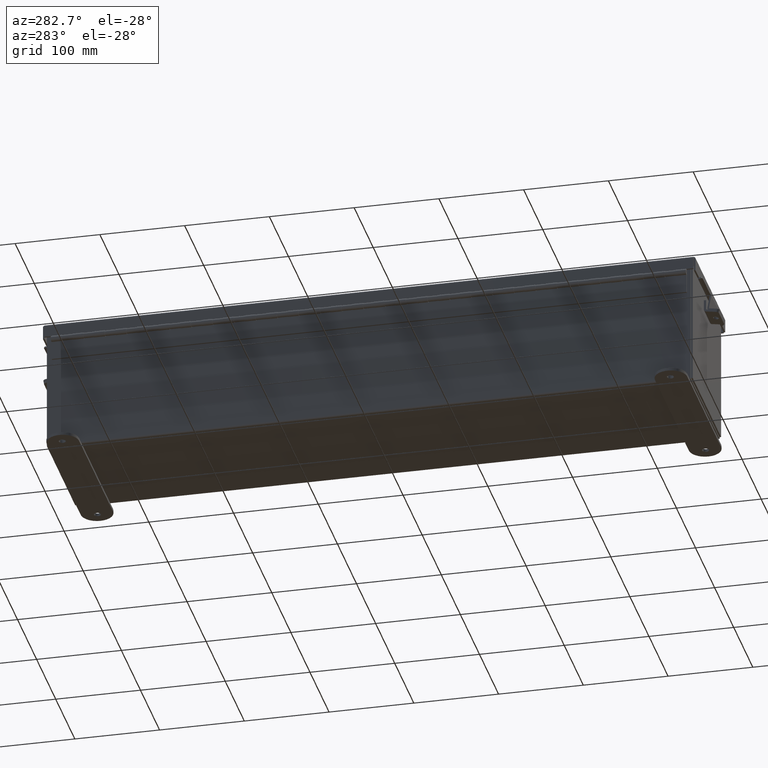
[diagram: clean part render]
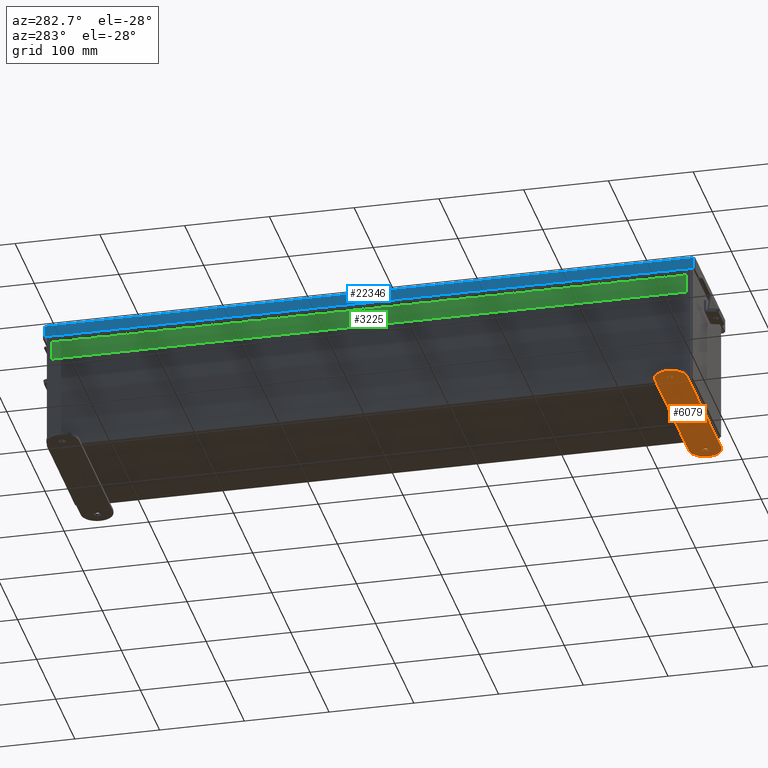
[diagram: same view with three faces highlighted in distinct colors, each labeled with its STEP entity id]
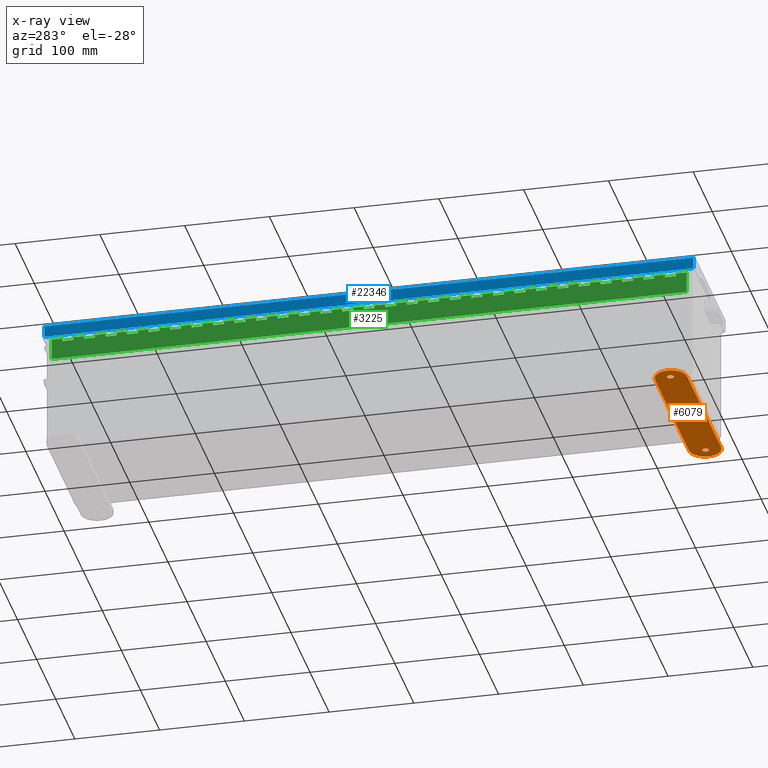
[diagram: x-ray of the same camera — body ghosted, the three highlighted faces saturated]
A machine part, auxiliary view with three faces highlighted in distinct colors.
The next image is the same camera in x-ray (body ghosted, the three faces saturated) — at least one of them is partly hidden behind the body in this view.
Their STEP definitions:

[orange] entity #6079 — the highlighted planar face has unit normal (0, 0, -1).
#646 = VECTOR ( 'NONE', #26229, 39.37007874015748100 ) ;
#673 = CARTESIAN_POINT ( 'NONE',  ( 4.250000000000000900, 0.4120940649496125900, -0.1345000000000000100 ) ) ;
#1180 = DIRECTION ( 'NONE',  ( -0.0000000000000000000, 0.0000000000000000000, -1.000000000000000000 ) ) ;
#1239 = FACE_BOUND ( 'NONE', #23690, .T. ) ;
#1760 = CARTESIAN_POINT ( 'NONE',  ( -3.625000000000000400, 0.4120940649496087600, -0.1345000000000000100 ) ) ;
#2109 = EDGE_CURVE ( 'NONE', #16812, #12346, #6261, .T. ) ;
#2394 = ORIENTED_EDGE ( 'NONE', *, *, #24155, .F. ) ;
#3279 = DIRECTION ( 'NONE',  ( 0.0000000000000000000, 0.0000000000000000000, 1.000000000000000000 ) ) ;
#3331 = EDGE_CURVE ( 'NONE', #15765, #9869, #20655, .T. ) ;
#3369 = LINE ( 'NONE', #11684, #18913 ) ;
#3766 = DIRECTION ( 'NONE',  ( -1.000000000000000000, 0.0000000000000000000, 0.0000000000000000000 ) ) ;
#4158 = VERTEX_POINT ( 'NONE', #6206 ) ;
#4881 = ORIENTED_EDGE ( 'NONE', *, *, #11782, .F. ) ;
#5174 = ORIENTED_EDGE ( 'NONE', *, *, #24050, .T. ) ;
#5185 = CIRCLE ( 'NONE', #7083, 0.1564999999999992800 ) ;
#5737 = DIRECTION ( 'NONE',  ( -1.000000000000000000, -1.170791997284684700E-016, -0.0000000000000000000 ) ) ;
#5972 = LINE ( 'NONE', #10003, #646 ) ;
#6023 = CARTESIAN_POINT ( 'NONE',  ( -3.499999999999998700, 0.4120940649496127000, -0.1345000000000000100 ) ) ;
#6079 = ADVANCED_FACE ( 'NONE', ( #16783, #1239, #11342 ), #11162, .T. ) ;
#6206 = CARTESIAN_POINT ( 'NONE',  ( -3.499999999999998700, 1.162094064949613000, -0.1345000000000000100 ) ) ;
#6261 = CIRCLE ( 'NONE', #16601, 0.7500000000000010000 ) ;
#6660 = CIRCLE ( 'NONE', #10471, 0.1564999999999992800 ) ;
#7062 = CARTESIAN_POINT ( 'NONE',  ( -3.781499999999999400, 0.4120940649496087600, -0.1345000000000000100 ) ) ;
#7083 = AXIS2_PLACEMENT_3D ( 'NONE', #15413, #3279, #17453 ) ;
#8052 = DIRECTION ( 'NONE',  ( 1.000000000000000000, 0.0000000000000000000, 0.0000000000000000000 ) ) ;
#8349 = AXIS2_PLACEMENT_3D ( 'NONE', #1760, #15922, #3766 ) ;
#8398 = EDGE_CURVE ( 'NONE', #12346, #4158, #3369, .T. ) ;
#8600 = AXIS2_PLACEMENT_3D ( 'NONE', #9498, #23667, #11555 ) ;
#9166 = CARTESIAN_POINT ( 'NONE',  ( 3.500000000000000000, 0.4120940649496125900, -0.1345000000000000100 ) ) ;
#9301 = CIRCLE ( 'NONE', #8349, 0.1564999999999992800 ) ;
#9316 = VERTEX_POINT ( 'NONE', #24331 ) ;
#9498 = CARTESIAN_POINT ( 'NONE',  ( 3.625000000000000400, 0.4120940649496087600, -0.1345000000000000100 ) ) ;
#9535 = DIRECTION ( 'NONE',  ( -0.0000000000000000000, -0.0000000000000000000, -1.000000000000000000 ) ) ;
#9559 = EDGE_LOOP ( 'NONE', ( #4881, #20049 ) ) ;
#9608 = VERTEX_POINT ( 'NONE', #7062 ) ;
#9869 = VERTEX_POINT ( 'NONE', #26070 ) ;
#9870 = DIRECTION ( 'NONE',  ( 0.0000000000000000000, 0.0000000000000000000, 1.000000000000000000 ) ) ;
#10003 = CARTESIAN_POINT ( 'NONE',  ( -3.499999999999998700, -0.3379059350503874600, -0.1345000000000000100 ) ) ;
#10471 = AXIS2_PLACEMENT_3D ( 'NONE', #21683, #9535, #23711 ) ;
#11162 = PLANE ( 'NONE',  #13552 ) ;
#11219 = DIRECTION ( 'NONE',  ( -1.000000000000000000, 0.0000000000000000000, 0.0000000000000000000 ) ) ;
#11342 = FACE_BOUND ( 'NONE', #9559, .T. ) ;
#11555 = DIRECTION ( 'NONE',  ( -1.000000000000000000, 0.0000000000000000000, 0.0000000000000000000 ) ) ;
#11684 = CARTESIAN_POINT ( 'NONE',  ( -3.499999999999998700, 1.162094064949613000, -0.1345000000000000100 ) ) ;
#11782 = EDGE_CURVE ( 'NONE', #9869, #15765, #6660, .T. ) ;
#12252 = EDGE_CURVE ( 'NONE', #21966, #19598, #5972, .T. ) ;
#12346 = VERTEX_POINT ( 'NONE', #18478 ) ;
#12543 = AXIS2_PLACEMENT_3D ( 'NONE', #22016, #9870, #24054 ) ;
#12716 = ORIENTED_EDGE ( 'NONE', *, *, #15866, .T. ) ;
#13552 = AXIS2_PLACEMENT_3D ( 'NONE', #25410, #1180, #15354 ) ;
#14582 = ORIENTED_EDGE ( 'NONE', *, *, #2109, .F. ) ;
#15177 = EDGE_LOOP ( 'NONE', ( #2394, #17032, #23659, #18991, #14582 ) ) ;
#15354 = DIRECTION ( 'NONE',  ( -1.000000000000000000, 0.0000000000000000000, 0.0000000000000000000 ) ) ;
#15413 = CARTESIAN_POINT ( 'NONE',  ( -3.625000000000000400, 0.4120940649496087600, -0.1345000000000000100 ) ) ;
#15605 = CARTESIAN_POINT ( 'NONE',  ( -3.499999999999998700, -0.3379059350503874600, -0.1345000000000000100 ) ) ;
#15765 = VERTEX_POINT ( 'NONE', #19630 ) ;
#15866 = EDGE_CURVE ( 'NONE', #9316, #9608, #9301, .T. ) ;
#15922 = DIRECTION ( 'NONE',  ( 0.0000000000000000000, 0.0000000000000000000, 1.000000000000000000 ) ) ;
#16601 = AXIS2_PLACEMENT_3D ( 'NONE', #9166, #23349, #11219 ) ;
#16783 = FACE_OUTER_BOUND ( 'NONE', #15177, .T. ) ;
#16812 = VERTEX_POINT ( 'NONE', #673 ) ;
#17032 = ORIENTED_EDGE ( 'NONE', *, *, #12252, .F. ) ;
#17453 = DIRECTION ( 'NONE',  ( -1.000000000000000000, 0.0000000000000000000, 0.0000000000000000000 ) ) ;
#18478 = CARTESIAN_POINT ( 'NONE',  ( 3.499999999999998700, 1.162094064949613600, -0.1345000000000000100 ) ) ;
#18913 = VECTOR ( 'NONE', #5737, 39.37007874015748100 ) ;
#18967 = AXIS2_PLACEMENT_3D ( 'NONE', #6023, #20212, #8052 ) ;
#18991 = ORIENTED_EDGE ( 'NONE', *, *, #8398, .F. ) ;
#19598 = VERTEX_POINT ( 'NONE', #19749 ) ;
#19630 = CARTESIAN_POINT ( 'NONE',  ( 3.468500000000001000, 0.4120940649496087600, -0.1345000000000000100 ) ) ;
#19749 = CARTESIAN_POINT ( 'NONE',  ( 3.499999999999998700, -0.3379059350503883000, -0.1345000000000000100 ) ) ;
#20049 = ORIENTED_EDGE ( 'NONE', *, *, #3331, .F. ) ;
#20212 = DIRECTION ( 'NONE',  ( 0.0000000000000000000, 0.0000000000000000000, 1.000000000000000000 ) ) ;
#20655 = CIRCLE ( 'NONE', #8600, 0.1564999999999992800 ) ;
#21683 = CARTESIAN_POINT ( 'NONE',  ( 3.625000000000000400, 0.4120940649496087600, -0.1345000000000000100 ) ) ;
#21966 = VERTEX_POINT ( 'NONE', #15605 ) ;
#21995 = CIRCLE ( 'NONE', #18967, 0.7499999999999998900 ) ;
#22016 = CARTESIAN_POINT ( 'NONE',  ( 3.500000000000000000, 0.4120940649496125900, -0.1345000000000000100 ) ) ;
#23349 = DIRECTION ( 'NONE',  ( 0.0000000000000000000, 0.0000000000000000000, 1.000000000000000000 ) ) ;
#23633 = EDGE_CURVE ( 'NONE', #4158, #21966, #21995, .T. ) ;
#23659 = ORIENTED_EDGE ( 'NONE', *, *, #23633, .F. ) ;
#23667 = DIRECTION ( 'NONE',  ( -0.0000000000000000000, -0.0000000000000000000, -1.000000000000000000 ) ) ;
#23690 = EDGE_LOOP ( 'NONE', ( #12716, #5174 ) ) ;
#23711 = DIRECTION ( 'NONE',  ( -1.000000000000000000, 0.0000000000000000000, 0.0000000000000000000 ) ) ;
#24050 = EDGE_CURVE ( 'NONE', #9608, #9316, #5185, .T. ) ;
#24054 = DIRECTION ( 'NONE',  ( -1.000000000000000000, 0.0000000000000000000, 0.0000000000000000000 ) ) ;
#24155 = EDGE_CURVE ( 'NONE', #19598, #16812, #24826, .T. ) ;
#24331 = CARTESIAN_POINT ( 'NONE',  ( -3.468500000000001000, 0.4120940649496087600, -0.1345000000000000100 ) ) ;
#24826 = CIRCLE ( 'NONE', #12543, 0.7500000000000010000 ) ;
#25410 = CARTESIAN_POINT ( 'NONE',  ( 3.500000000000000000, 0.4120940649496125900, -0.1345000000000000100 ) ) ;
#26070 = CARTESIAN_POINT ( 'NONE',  ( 3.781499999999999400, 0.4120940649496087600, -0.1345000000000000100 ) ) ;
#26229 = DIRECTION ( 'NONE',  ( 1.000000000000000000, -1.170791997284684700E-016, 0.0000000000000000000 ) ) ;

[blue] entity #22346 — the highlighted planar face has unit normal (1, -0, -0).
#998 = PLANE ( 'NONE',  #4694 ) ;
#1202 = CARTESIAN_POINT ( 'NONE',  ( 3.156250000000012900, 15.07447893218813700, 0.5502999999999999000 ) ) ;
#1421 = LINE ( 'NONE', #20252, #16963 ) ;
#1447 = CARTESIAN_POINT ( 'NONE',  ( 3.156250000000011100, -15.07447893218813000, 0.01300000000000010700 ) ) ;
#1716 = VERTEX_POINT ( 'NONE', #1447 ) ;
#2476 = ORIENTED_EDGE ( 'NONE', *, *, #4818, .T. ) ;
#2589 = EDGE_LOOP ( 'NONE', ( #2701, #6532, #2476, #24933 ) ) ;
#2701 = ORIENTED_EDGE ( 'NONE', *, *, #4850, .F. ) ;
#3021 = DIRECTION ( 'NONE',  ( -1.000000000000000000, -9.284421900841595900E-031, 3.971430846686186800E-015 ) ) ;
#4694 = AXIS2_PLACEMENT_3D ( 'NONE', #23193, #3021, #17201 ) ;
#4729 = EDGE_CURVE ( 'NONE', #1716, #22575, #16859, .T. ) ;
#4818 = EDGE_CURVE ( 'NONE', #10179, #22575, #8244, .T. ) ;
#4850 = EDGE_CURVE ( 'NONE', #7392, #1716, #7608, .T. ) ;
#5713 = CARTESIAN_POINT ( 'NONE',  ( 3.156250000000012900, -15.07447893218813000, 0.5502999999999999000 ) ) ;
#6176 = CARTESIAN_POINT ( 'NONE',  ( 3.156250000000011100, -15.07447893218813000, 0.0000000000000000000 ) ) ;
#6450 = CARTESIAN_POINT ( 'NONE',  ( 3.156250000000012900, -2.667820306312757000E-018, 0.5503000000000096700 ) ) ;
#6532 = ORIENTED_EDGE ( 'NONE', *, *, #15997, .T. ) ;
#7392 = VERTEX_POINT ( 'NONE', #17358 ) ;
#7608 = LINE ( 'NONE', #22717, #12407 ) ;
#8176 = DIRECTION ( 'NONE',  ( 3.971430846686186800E-015, 2.528052682200451200E-029, 1.000000000000000000 ) ) ;
#8244 = LINE ( 'NONE', #6450, #18420 ) ;
#8752 = FACE_OUTER_BOUND ( 'NONE', #2589, .T. ) ;
#10179 = VERTEX_POINT ( 'NONE', #1202 ) ;
#10792 = VECTOR ( 'NONE', #20371, 39.37007874015748100 ) ;
#12407 = VECTOR ( 'NONE', #16742, 39.37007874015748100 ) ;
#12576 = DIRECTION ( 'NONE',  ( -8.757496902906192300E-031, -1.000000000000000000, -2.529285277364869100E-029 ) ) ;
#15997 = EDGE_CURVE ( 'NONE', #7392, #10179, #1421, .T. ) ;
#16742 = DIRECTION ( 'NONE',  ( -9.602713591908442500E-031, -1.000000000000000000, -1.802456408193383400E-017 ) ) ;
#16859 = LINE ( 'NONE', #6176, #10792 ) ;
#16963 = VECTOR ( 'NONE', #8176, 39.37007874015748100 ) ;
#17201 = DIRECTION ( 'NONE',  ( 3.971430846686186800E-015, 2.528052682200451200E-029, 1.000000000000000000 ) ) ;
#17358 = CARTESIAN_POINT ( 'NONE',  ( 3.156250000000011100, 15.07447893218813700, 0.01300000000000010700 ) ) ;
#18420 = VECTOR ( 'NONE', #12576, 39.37007874015748100 ) ;
#20252 = CARTESIAN_POINT ( 'NONE',  ( 3.156250000000011100, 15.07447893218813700, -1.311287036958846300E-014 ) ) ;
#20371 = DIRECTION ( 'NONE',  ( 3.971430846686186800E-015, 2.528052682200451200E-029, 1.000000000000000000 ) ) ;
#22346 = ADVANCED_FACE ( 'NONE', ( #8752 ), #998, .F. ) ;
#22575 = VERTEX_POINT ( 'NONE', #5713 ) ;
#22717 = CARTESIAN_POINT ( 'NONE',  ( 3.156250000000011100, -15.15624999999999500, 0.01300000000000010700 ) ) ;
#23193 = CARTESIAN_POINT ( 'NONE',  ( 3.156250000000011100, -2.667820306312757000E-018, -1.202013117212275700E-014 ) ) ;
#24933 = ORIENTED_EDGE ( 'NONE', *, *, #4729, .F. ) ;

[green] entity #3225 — the highlighted planar face has unit normal (1, -0, 0).
#26 = CARTESIAN_POINT ( 'NONE',  ( 0.0000000000000000000, 24.99999999999999600, 0.0000000000000000000 ) ) ;
#39 = CARTESIAN_POINT ( 'NONE',  ( 0.1365000000000000100, 13.49999999999999500, 1.707404996040164500E-017 ) ) ;
#50 = CARTESIAN_POINT ( 'NONE',  ( 0.0000000000000000000, 6.999999999999998200, 0.0000000000000000000 ) ) ;
#57 = LINE ( 'NONE', #12217, #25674 ) ;
#70 = ORIENTED_EDGE ( 'NONE', *, *, #21969, .F. ) ;
#97 = VERTEX_POINT ( 'NONE', #8235 ) ;
#128 = EDGE_CURVE ( 'NONE', #22297, #15015, #25350, .T. ) ;
#135 = LINE ( 'NONE', #5770, #15035 ) ;
#142 = CARTESIAN_POINT ( 'NONE',  ( 0.1365000000000000100, 17.99999999999999600, 1.707404996040164500E-017 ) ) ;
#157 = DIRECTION ( 'NONE',  ( -1.000000000000000000, 0.0000000000000000000, 0.0000000000000000000 ) ) ;
#178 = CARTESIAN_POINT ( 'NONE',  ( 0.1365000000000000100, 0.0000000000000000000, 1.707404996040164500E-017 ) ) ;
#191 = VERTEX_POINT ( 'NONE', #20676 ) ;
#203 = VECTOR ( 'NONE', #5213, 39.37007874015748100 ) ;
#274 = CARTESIAN_POINT ( 'NONE',  ( 0.2730000000000000200, -17.00000000000000000, 0.0000000000000000000 ) ) ;
#277 = LINE ( 'NONE', #14626, #10357 ) ;
#290 = ORIENTED_EDGE ( 'NONE', *, *, #360, .T. ) ;
#324 = CARTESIAN_POINT ( 'NONE',  ( 0.0000000000000000000, 27.00000000000000000, 0.0000000000000000000 ) ) ;
#360 = EDGE_CURVE ( 'NONE', #5874, #4127, #20304, .T. ) ;
#370 = LINE ( 'NONE', #10859, #5088 ) ;
#386 = FACE_OUTER_BOUND ( 'NONE', #15197, .T. ) ;
#394 = LINE ( 'NONE', #18616, #21281 ) ;
#427 = VECTOR ( 'NONE', #24060, 39.37007874015748100 ) ;
#440 = DIRECTION ( 'NONE',  ( 0.0000000000000000000, 1.000000000000000000, 0.0000000000000000000 ) ) ;
#461 = EDGE_CURVE ( 'NONE', #21043, #12117, #13635, .T. ) ;
#471 = DIRECTION ( 'NONE',  ( -1.000000000000000000, 0.0000000000000000000, 0.0000000000000000000 ) ) ;
#478 = LINE ( 'NONE', #13283, #11193 ) ;
#485 = DIRECTION ( 'NONE',  ( 0.0000000000000000000, 1.000000000000000000, 0.0000000000000000000 ) ) ;
#606 = EDGE_CURVE ( 'NONE', #17628, #23533, #13642, .T. ) ;
#621 = ORIENTED_EDGE ( 'NONE', *, *, #16068, .F. ) ;
#627 = VERTEX_POINT ( 'NONE', #11604 ) ;
#689 = CARTESIAN_POINT ( 'NONE',  ( 0.0000000000000000000, 13.49999999999999500, 0.0000000000000000000 ) ) ;
#744 = DIRECTION ( 'NONE',  ( 0.0000000000000000000, 1.000000000000000000, 0.0000000000000000000 ) ) ;
#770 = CARTESIAN_POINT ( 'NONE',  ( 0.2730000000000000200, 10.99999999999999800, 0.0000000000000000000 ) ) ;
#785 = ORIENTED_EDGE ( 'NONE', *, *, #21545, .F. ) ;
#794 = DIRECTION ( 'NONE',  ( -1.000000000000000000, 0.0000000000000000000, 0.0000000000000000000 ) ) ;
#826 = CARTESIAN_POINT ( 'NONE',  ( 0.1365000000000000100, 4.499999999999998200, 1.707404996040164500E-017 ) ) ;
#843 = LINE ( 'NONE', #7736, #17603 ) ;
#858 = CARTESIAN_POINT ( 'NONE',  ( 0.1365000000000000100, 0.0000000000000000000, 1.707404996040164500E-017 ) ) ;
#868 = ORIENTED_EDGE ( 'NONE', *, *, #5804, .T. ) ;
#895 = ORIENTED_EDGE ( 'NONE', *, *, #25461, .F. ) ;
#903 = CARTESIAN_POINT ( 'NONE',  ( 0.2730000000000000200, 11.99999999999999800, 0.0000000000000000000 ) ) ;
#931 = CARTESIAN_POINT ( 'NONE',  ( 0.1365000000000000100, 24.49999999999999600, 1.707404996040164500E-017 ) ) ;
#932 = LINE ( 'NONE', #50, #16446 ) ;
#935 = DIRECTION ( 'NONE',  ( 0.0000000000000000000, 1.000000000000000000, 0.0000000000000000000 ) ) ;
#984 = VERTEX_POINT ( 'NONE', #826 ) ;
#1035 = CARTESIAN_POINT ( 'NONE',  ( 0.2730000000000000200, 23.00000000000000000, 0.0000000000000000000 ) ) ;
#1039 = ORIENTED_EDGE ( 'NONE', *, *, #9412, .F. ) ;
#1056 = LINE ( 'NONE', #7844, #427 ) ;
#1060 = ORIENTED_EDGE ( 'NONE', *, *, #25613, .F. ) ;
#1080 = EDGE_CURVE ( 'NONE', #23533, #15232, #23121, .T. ) ;
#1090 = LINE ( 'NONE', #9229, #26068 ) ;
#1098 = LINE ( 'NONE', #4866, #11191 ) ;
#1106 = DIRECTION ( 'NONE',  ( 0.0000000000000000000, 1.000000000000000000, 0.0000000000000000000 ) ) ;
#1115 = LINE ( 'NONE', #23766, #15359 ) ;
#1219 = VERTEX_POINT ( 'NONE', #1853 ) ;
#1237 = CARTESIAN_POINT ( 'NONE',  ( 0.2730000000000000200, -19.00000000000000000, 0.0000000000000000000 ) ) ;
#1240 = DIRECTION ( 'NONE',  ( -1.000000000000000000, 0.0000000000000000000, 0.0000000000000000000 ) ) ;
#1258 = VECTOR ( 'NONE', #5951, 39.37007874015748100 ) ;
#1319 = CARTESIAN_POINT ( 'NONE',  ( 0.1365000000000000100, 1.499999999999996700, 1.707404996040164500E-017 ) ) ;
#1361 = VERTEX_POINT ( 'NONE', #8379 ) ;
#1444 = CARTESIAN_POINT ( 'NONE',  ( 0.0000000000000000000, 4.499999999999998200, 0.0000000000000000000 ) ) ;
#1498 = LINE ( 'NONE', #1237, #22379 ) ;
#1538 = ORIENTED_EDGE ( 'NONE', *, *, #2667, .F. ) ;
#1539 = CARTESIAN_POINT ( 'NONE',  ( 0.1365000000000000100, 24.99999999999999600, 1.707404996040164500E-017 ) ) ;
#1570 = VECTOR ( 'NONE', #22892, 39.37007874015748100 ) ;
#1578 = CARTESIAN_POINT ( 'NONE',  ( 0.2730000000000000200, -5.999999999999999100, 0.0000000000000000000 ) ) ;
#1627 = LINE ( 'NONE', #24852, #14955 ) ;
#1644 = ORIENTED_EDGE ( 'NONE', *, *, #15436, .F. ) ;
#1686 = LINE ( 'NONE', #14493, #17213 ) ;
#1719 = VECTOR ( 'NONE', #2990, 39.37007874015748100 ) ;
#1721 = VERTEX_POINT ( 'NONE', #25753 ) ;
#1725 = VECTOR ( 'NONE', #22654, 39.37007874015748100 ) ;
#1782 = CARTESIAN_POINT ( 'NONE',  ( 0.1365000000000000100, 22.00000000000000000, 1.707404996040164500E-017 ) ) ;
#1795 = DIRECTION ( 'NONE',  ( 0.0000000000000000000, 1.000000000000000000, 0.0000000000000000000 ) ) ;
#1805 = VECTOR ( 'NONE', #3878, 39.37007874015748100 ) ;
#1821 = EDGE_CURVE ( 'NONE', #11028, #23477, #23378, .T. ) ;
#1853 = CARTESIAN_POINT ( 'NONE',  ( 0.2730000000000000200, 18.49999999999999600, 0.0000000000000000000 ) ) ;
#1887 = VERTEX_POINT ( 'NONE', #4437 ) ;
#1905 = CARTESIAN_POINT ( 'NONE',  ( 0.1365000000000000100, 18.49999999999999600, 1.707404996040164500E-017 ) ) ;
#1912 = ORIENTED_EDGE ( 'NONE', *, *, #8656, .F. ) ;
#1933 = CARTESIAN_POINT ( 'NONE',  ( 0.1365000000000000100, 27.00000000000000000, 1.707404996040164500E-017 ) ) ;
#2007 = CARTESIAN_POINT ( 'NONE',  ( 0.2730000000000000200, -25.00000000000000000, 0.0000000000000000000 ) ) ;
#2015 = LINE ( 'NONE', #3593, #11477 ) ;
#2019 = VERTEX_POINT ( 'NONE', #21006 ) ;
#2096 = CARTESIAN_POINT ( 'NONE',  ( 0.1365000000000000100, 19.99999999999999600, 1.707404996040164500E-017 ) ) ;
#2151 = EDGE_CURVE ( 'NONE', #6510, #3818, #10356, .T. ) ;
#2163 = VECTOR ( 'NONE', #13643, 39.37007874015748100 ) ;
#2284 = ORIENTED_EDGE ( 'NONE', *, *, #4960, .F. ) ;
#2317 = EDGE_CURVE ( 'NONE', #14901, #191, #5162, .T. ) ;
#2352 = ORIENTED_EDGE ( 'NONE', *, *, #16546, .T. ) ;
#2373 = VECTOR ( 'NONE', #22816, 39.37007874015748100 ) ;
#2406 = CARTESIAN_POINT ( 'NONE',  ( 0.1365000000000000100, 0.0000000000000000000, 1.707404996040164500E-017 ) ) ;
#2429 = CARTESIAN_POINT ( 'NONE',  ( 0.1365000000000000100, 1.999999999999998400, 1.707404996040164500E-017 ) ) ;
#2434 = EDGE_CURVE ( 'NONE', #23189, #8018, #2651, .T. ) ;
#2454 = LINE ( 'NONE', #9945, #1805 ) ;
#2478 = LINE ( 'NONE', #14629, #17977 ) ;
#2490 = CARTESIAN_POINT ( 'NONE',  ( 0.0000000000000000000, 17.99999999999999600, 0.0000000000000000000 ) ) ;
#2504 = DIRECTION ( 'NONE',  ( -1.000000000000000000, 0.0000000000000000000, 0.0000000000000000000 ) ) ;
#2539 = CARTESIAN_POINT ( 'NONE',  ( 0.1365000000000000100, 20.99999999999999600, 1.707404996040164500E-017 ) ) ;
#2558 = CARTESIAN_POINT ( 'NONE',  ( 0.2730000000000000200, 12.49999999999999600, 0.0000000000000000000 ) ) ;
#2621 = VERTEX_POINT ( 'NONE', #18986 ) ;
#2640 = ORIENTED_EDGE ( 'NONE', *, *, #19237, .F. ) ;
#2651 = LINE ( 'NONE', #16201, #7347 ) ;
#2667 = EDGE_CURVE ( 'NONE', #23320, #20979, #7037, .T. ) ;
#2693 = VECTOR ( 'NONE', #24124, 39.37007874015748100 ) ;
#2747 = VERTEX_POINT ( 'NONE', #15356 ) ;
#2781 = LINE ( 'NONE', #2007, #23645 ) ;
#2787 = ORIENTED_EDGE ( 'NONE', *, *, #5479, .F. ) ;
#2843 = ORIENTED_EDGE ( 'NONE', *, *, #5364, .F. ) ;
#2917 = EDGE_CURVE ( 'NONE', #1721, #10740, #12757, .T. ) ;
#2937 = DIRECTION ( 'NONE',  ( 0.0000000000000000000, 1.000000000000000000, 0.0000000000000000000 ) ) ;
#2986 = CARTESIAN_POINT ( 'NONE',  ( 0.1365000000000000100, 29.50000000000000000, 1.707404996040164500E-017 ) ) ;
#2990 = DIRECTION ( 'NONE',  ( -1.000000000000000000, 0.0000000000000000000, 0.0000000000000000000 ) ) ;
#3003 = EDGE_CURVE ( 'NONE', #14225, #3966, #16234, .T. ) ;
#3039 = DIRECTION ( 'NONE',  ( -1.000000000000000000, 0.0000000000000000000, 0.0000000000000000000 ) ) ;
#3043 = CARTESIAN_POINT ( 'NONE',  ( 0.1365000000000000100, 0.0000000000000000000, 1.707404996040164500E-017 ) ) ;
#3060 = VERTEX_POINT ( 'NONE', #14269 ) ;
#3172 = DIRECTION ( 'NONE',  ( -1.000000000000000000, 0.0000000000000000000, 0.0000000000000000000 ) ) ;
#3200 = ORIENTED_EDGE ( 'NONE', *, *, #21397, .T. ) ;
#3215 = DIRECTION ( 'NONE',  ( 0.0000000000000000000, 1.000000000000000000, 0.0000000000000000000 ) ) ;
#3225 = ADVANCED_FACE ( 'NONE', ( #386 ), #17271, .F. ) ;
#3265 = VECTOR ( 'NONE', #4505, 39.37007874015748100 ) ;
#3271 = DIRECTION ( 'NONE',  ( 0.0000000000000000000, 1.000000000000000000, 0.0000000000000000000 ) ) ;
#3273 = CARTESIAN_POINT ( 'NONE',  ( 0.0000000000000000000, 18.99999999999999600, 0.0000000000000000000 ) ) ;
#3323 = ORIENTED_EDGE ( 'NONE', *, *, #10918, .F. ) ;
#3390 = CARTESIAN_POINT ( 'NONE',  ( 0.1365000000000000100, 25.50000000000000000, 1.707404996040164500E-017 ) ) ;
#3579 = DIRECTION ( 'NONE',  ( -1.000000000000000000, 0.0000000000000000000, 0.0000000000000000000 ) ) ;
#3593 = CARTESIAN_POINT ( 'NONE',  ( 0.2730000000000000200, -28.00000000000000000, 0.0000000000000000000 ) ) ;
#3600 = DIRECTION ( 'NONE',  ( 0.0000000000000000000, 1.000000000000000000, 0.0000000000000000000 ) ) ;
#3608 = LINE ( 'NONE', #18690, #23869 ) ;
#3658 = CARTESIAN_POINT ( 'NONE',  ( 0.2730000000000000200, 19.49999999999999600, 0.0000000000000000000 ) ) ;
#3661 = EDGE_CURVE ( 'NONE', #13517, #8745, #16886, .T. ) ;
#3703 = EDGE_CURVE ( 'NONE', #5987, #14225, #10819, .T. ) ;
#3719 = LINE ( 'NONE', #24948, #7188 ) ;
#3721 = CARTESIAN_POINT ( 'NONE',  ( 0.2730000000000000200, 23.99999999999999600, 0.0000000000000000000 ) ) ;
#3777 = EDGE_CURVE ( 'NONE', #9214, #19102, #14333, .T. ) ;
#3786 = LINE ( 'NONE', #17781, #19316 ) ;
#3818 = VERTEX_POINT ( 'NONE', #11218 ) ;
#3849 = VERTEX_POINT ( 'NONE', #23517 ) ;
#3878 = DIRECTION ( 'NONE',  ( 1.000000000000000000, 0.0000000000000000000, 0.0000000000000000000 ) ) ;
#3900 = CARTESIAN_POINT ( 'NONE',  ( 0.2730000000000000200, 16.49999999999999600, 0.0000000000000000000 ) ) ;
#3917 = ORIENTED_EDGE ( 'NONE', *, *, #8105, .T. ) ;
#3924 = LINE ( 'NONE', #21444, #24189 ) ;
#3935 = VERTEX_POINT ( 'NONE', #3390 ) ;
#3937 = CARTESIAN_POINT ( 'NONE',  ( 0.0000000000000000000, 11.99999999999999800, 0.0000000000000000000 ) ) ;
#3966 = VERTEX_POINT ( 'NONE', #1539 ) ;
#3992 = ORIENTED_EDGE ( 'NONE', *, *, #25161, .F. ) ;
#3993 = VECTOR ( 'NONE', #6898, 39.37007874015748100 ) ;
#4051 = DIRECTION ( 'NONE',  ( -1.000000000000000000, 0.0000000000000000000, 0.0000000000000000000 ) ) ;
#4100 = CARTESIAN_POINT ( 'NONE',  ( 0.1365000000000000100, 17.49999999999999600, 1.707404996040164500E-017 ) ) ;
#4109 = VECTOR ( 'NONE', #20139, 39.37007874015748100 ) ;
#4118 = EDGE_CURVE ( 'NONE', #8987, #5394, #18785, .T. ) ;
#4127 = VERTEX_POINT ( 'NONE', #39 ) ;
#4129 = LINE ( 'NONE', #6417, #8859 ) ;
#4160 = DIRECTION ( 'NONE',  ( 0.0000000000000000000, 1.000000000000000000, 0.0000000000000000000 ) ) ;
#4177 = VECTOR ( 'NONE', #13194, 39.37007874015748100 ) ;
#4191 = VERTEX_POINT ( 'NONE', #6291 ) ;
#4228 = DIRECTION ( 'NONE',  ( -1.000000000000000000, 0.0000000000000000000, 0.0000000000000000000 ) ) ;
#4238 = DIRECTION ( 'NONE',  ( 0.0000000000000000000, 1.000000000000000000, 0.0000000000000000000 ) ) ;
#4261 = VECTOR ( 'NONE', #440, 39.37007874015748100 ) ;
#4328 = DIRECTION ( 'NONE',  ( 0.0000000000000000000, 1.000000000000000000, 0.0000000000000000000 ) ) ;
#4364 = DIRECTION ( 'NONE',  ( -1.000000000000000000, 0.0000000000000000000, 0.0000000000000000000 ) ) ;
#4365 = CARTESIAN_POINT ( 'NONE',  ( 0.1365000000000000100, 15.99999999999999800, 1.707404996040164500E-017 ) ) ;
#4385 = CARTESIAN_POINT ( 'NONE',  ( 0.1365000000000000100, 0.0000000000000000000, 1.707404996040164500E-017 ) ) ;
#4437 = CARTESIAN_POINT ( 'NONE',  ( 0.2730000000000000200, 22.49999999999999600, 0.0000000000000000000 ) ) ;
#4480 = VERTEX_POINT ( 'NONE', #21412 ) ;
#4505 = DIRECTION ( 'NONE',  ( 0.0000000000000000000, 1.000000000000000000, 0.0000000000000000000 ) ) ;
#4587 = CARTESIAN_POINT ( 'NONE',  ( 0.1365000000000000100, 3.499999999999995100, 1.707404996040164500E-017 ) ) ;
#4595 = EDGE_CURVE ( 'NONE', #25162, #25409, #8573, .T. ) ;
#4695 = LINE ( 'NONE', #15350, #19564 ) ;
#4715 = CARTESIAN_POINT ( 'NONE',  ( 0.1365000000000000100, 3.999999999999996900, 1.707404996040164500E-017 ) ) ;
#4732 = EDGE_CURVE ( 'NONE', #13290, #23320, #57, .T. ) ;
#4792 = VECTOR ( 'NONE', #20757, 39.37007874015748100 ) ;
#4827 = ORIENTED_EDGE ( 'NONE', *, *, #8190, .F. ) ;
#4860 = EDGE_CURVE ( 'NONE', #5114, #4978, #1627, .T. ) ;
#4866 = CARTESIAN_POINT ( 'NONE',  ( 0.0000000000000000000, 24.49999999999999600, 0.0000000000000000000 ) ) ;
#4924 = EDGE_CURVE ( 'NONE', #8466, #8373, #370, .T. ) ;
#4934 = CARTESIAN_POINT ( 'NONE',  ( 0.2730000000000000200, 5.000000000000000000, 0.0000000000000000000 ) ) ;
#4960 = EDGE_CURVE ( 'NONE', #11906, #11599, #20632, .T. ) ;
#4978 = VERTEX_POINT ( 'NONE', #1319 ) ;
#4987 = VERTEX_POINT ( 'NONE', #23590 ) ;
#5021 = DIRECTION ( 'NONE',  ( 0.0000000000000000000, 1.000000000000000000, 0.0000000000000000000 ) ) ;
#5033 = VERTEX_POINT ( 'NONE', #25798 ) ;
#5088 = VECTOR ( 'NONE', #3172, 39.37007874015748100 ) ;
#5114 = VERTEX_POINT ( 'NONE', #19976 ) ;
#5150 = VERTEX_POINT ( 'NONE', #20072 ) ;
#5162 = LINE ( 'NONE', #25893, #21321 ) ;
#5172 = LINE ( 'NONE', #5343, #10552 ) ;
#5213 = DIRECTION ( 'NONE',  ( -1.000000000000000000, 0.0000000000000000000, 0.0000000000000000000 ) ) ;
#5248 = EDGE_CURVE ( 'NONE', #12426, #19234, #20939, .T. ) ;
#5279 = LINE ( 'NONE', #15077, #9369 ) ;
#5290 = CARTESIAN_POINT ( 'NONE',  ( 0.0000000000000000000, 2.499999999999995600, 0.0000000000000000000 ) ) ;
#5308 = CARTESIAN_POINT ( 'NONE',  ( 0.1365000000000000100, 11.99999999999999800, 1.707404996040164500E-017 ) ) ;
#5336 = EDGE_CURVE ( 'NONE', #18702, #20061, #6968, .T. ) ;
#5343 = CARTESIAN_POINT ( 'NONE',  ( 0.0000000000000000000, 28.00000000000000000, 0.0000000000000000000 ) ) ;
#5345 = ORIENTED_EDGE ( 'NONE', *, *, #1080, .F. ) ;
#5358 = CARTESIAN_POINT ( 'NONE',  ( 0.2730000000000000200, 10.49999999999999600, 0.0000000000000000000 ) ) ;
#5364 = EDGE_CURVE ( 'NONE', #19526, #2019, #11715, .T. ) ;
#5391 = DIRECTION ( 'NONE',  ( 0.0000000000000000000, 1.000000000000000000, 0.0000000000000000000 ) ) ;
#5394 = VERTEX_POINT ( 'NONE', #12742 ) ;
#5467 = VERTEX_POINT ( 'NONE', #4934 ) ;
#5479 = EDGE_CURVE ( 'NONE', #17155, #22754, #14584, .T. ) ;
#5503 = LINE ( 'NONE', #4385, #4261 ) ;
#5525 = CARTESIAN_POINT ( 'NONE',  ( 0.1365000000000000100, 27.49999999999999600, 1.707404996040164500E-017 ) ) ;
#5532 = ORIENTED_EDGE ( 'NONE', *, *, #7053, .T. ) ;
#5542 = LINE ( 'NONE', #19386, #203 ) ;
#5598 = DIRECTION ( 'NONE',  ( 0.0000000000000000000, 1.000000000000000000, 0.0000000000000000000 ) ) ;
#5645 = ORIENTED_EDGE ( 'NONE', *, *, #128, .T. ) ;
#5702 = EDGE_CURVE ( 'NONE', #4987, #10427, #9451, .T. ) ;
#5726 = VECTOR ( 'NONE', #2504, 39.37007874015748100 ) ;
#5740 = VERTEX_POINT ( 'NONE', #18208 ) ;
#5770 = CARTESIAN_POINT ( 'NONE',  ( 0.0000000000000000000, 20.50000000000000000, 0.0000000000000000000 ) ) ;
#5790 = CARTESIAN_POINT ( 'NONE',  ( 0.2730000000000000200, 9.999999999999998200, 0.0000000000000000000 ) ) ;
#5804 = EDGE_CURVE ( 'NONE', #13387, #3935, #12985, .T. ) ;
#5836 = EDGE_CURVE ( 'NONE', #11187, #17695, #13602, .T. ) ;
#5874 = VERTEX_POINT ( 'NONE', #22685 ) ;
#5880 = CARTESIAN_POINT ( 'NONE',  ( 0.0000000000000000000, 7.999999999999997300, 0.0000000000000000000 ) ) ;
#5940 = EDGE_CURVE ( 'NONE', #23164, #21456, #9743, .T. ) ;
#5943 = CARTESIAN_POINT ( 'NONE',  ( 0.1365000000000000100, 26.49999999999999600, 1.707404996040164500E-017 ) ) ;
#5944 = DIRECTION ( 'NONE',  ( -1.000000000000000000, 0.0000000000000000000, 0.0000000000000000000 ) ) ;
#5951 = DIRECTION ( 'NONE',  ( -1.000000000000000000, 0.0000000000000000000, 0.0000000000000000000 ) ) ;
#5987 = VERTEX_POINT ( 'NONE', #6923 ) ;
#6131 = DIRECTION ( 'NONE',  ( -1.000000000000000000, 0.0000000000000000000, 0.0000000000000000000 ) ) ;
#6220 = ORIENTED_EDGE ( 'NONE', *, *, #22318, .F. ) ;
#6291 = CARTESIAN_POINT ( 'NONE',  ( 0.1365000000000000100, 7.999999999999997300, 1.707404996040164500E-017 ) ) ;
#6298 = CARTESIAN_POINT ( 'NONE',  ( 0.1365000000000000100, 14.49999999999999600, 1.707404996040164500E-017 ) ) ;
#6300 = LINE ( 'NONE', #20875, #1570 ) ;
#6329 = CARTESIAN_POINT ( 'NONE',  ( 0.2730000000000000200, 14.99999999999999800, 0.0000000000000000000 ) ) ;
#6337 = ORIENTED_EDGE ( 'NONE', *, *, #16394, .F. ) ;
#6417 = CARTESIAN_POINT ( 'NONE',  ( 0.0000000000000000000, 3.999999999999996900, 0.0000000000000000000 ) ) ;
#6447 = VERTEX_POINT ( 'NONE', #10790 ) ;
#6510 = VERTEX_POINT ( 'NONE', #15083 ) ;
#6534 = DIRECTION ( 'NONE',  ( 0.0000000000000000000, 1.000000000000000000, 0.0000000000000000000 ) ) ;
#6551 = DIRECTION ( 'NONE',  ( 0.0000000000000000000, 1.000000000000000000, 0.0000000000000000000 ) ) ;
#6571 = CARTESIAN_POINT ( 'NONE',  ( 0.1365000000000000100, 8.999999999999996400, 1.707404996040164500E-017 ) ) ;
#6661 = EDGE_CURVE ( 'NONE', #3849, #21912, #21826, .T. ) ;
#6735 = CARTESIAN_POINT ( 'NONE',  ( 0.0000000000000000000, 17.00000000000000000, 0.0000000000000000000 ) ) ;
#6821 = CARTESIAN_POINT ( 'NONE',  ( 0.2730000000000000200, -4.000000000000000000, 0.0000000000000000000 ) ) ;
#6828 = EDGE_CURVE ( 'NONE', #9405, #10825, #22135, .T. ) ;
#6892 = VECTOR ( 'NONE', #23714, 39.37007874015748100 ) ;
#6898 = DIRECTION ( 'NONE',  ( 0.0000000000000000000, 1.000000000000000000, 0.0000000000000000000 ) ) ;
#6923 = CARTESIAN_POINT ( 'NONE',  ( 0.2730000000000000200, 24.49999999999999600, 0.0000000000000000000 ) ) ;
#6930 = ORIENTED_EDGE ( 'NONE', *, *, #20960, .F. ) ;
#6939 = VERTEX_POINT ( 'NONE', #3721 ) ;
#6968 = LINE ( 'NONE', #10585, #17752 ) ;
#7037 = LINE ( 'NONE', #3043, #7648 ) ;
#7053 = EDGE_CURVE ( 'NONE', #5740, #6447, #21801, .T. ) ;
#7087 = LINE ( 'NONE', #12842, #2373 ) ;
#7127 = DIRECTION ( 'NONE',  ( -1.000000000000000000, 0.0000000000000000000, -0.0000000000000000000 ) ) ;
#7165 = VERTEX_POINT ( 'NONE', #2429 ) ;
#7188 = VECTOR ( 'NONE', #744, 39.37007874015748100 ) ;
#7197 = CARTESIAN_POINT ( 'NONE',  ( 0.1365000000000000100, 0.0000000000000000000, 1.707404996040164500E-017 ) ) ;
#7270 = CARTESIAN_POINT ( 'NONE',  ( 0.1365000000000000100, 9.999999999999998200, 1.707404996040164500E-017 ) ) ;
#7305 = CARTESIAN_POINT ( 'NONE',  ( 0.2730000000000000200, 19.99999999999999600, 0.0000000000000000000 ) ) ;
#7325 = DIRECTION ( 'NONE',  ( 0.0000000000000000000, 1.000000000000000000, 0.0000000000000000000 ) ) ;
#7347 = VECTOR ( 'NONE', #4051, 39.37007874015748100 ) ;
#7353 = LINE ( 'NONE', #23209, #22259 ) ;
#7361 = DIRECTION ( 'NONE',  ( -1.000000000000000000, 0.0000000000000000000, 0.0000000000000000000 ) ) ;
#7413 = EDGE_CURVE ( 'NONE', #18702, #23730, #14201, .T. ) ;
#7441 = VERTEX_POINT ( 'NONE', #9337 ) ;
#7553 = VECTOR ( 'NONE', #8343, 39.37007874015748100 ) ;
#7575 = LINE ( 'NONE', #2406, #13005 ) ;
#7607 = VECTOR ( 'NONE', #15307, 39.37007874015748100 ) ;
#7648 = VECTOR ( 'NONE', #17226, 39.37007874015748100 ) ;
#7675 = CARTESIAN_POINT ( 'NONE',  ( 0.2730000000000000200, 1.999999999999998400, 0.0000000000000000000 ) ) ;
#7736 = CARTESIAN_POINT ( 'NONE',  ( 0.2730000000000000200, -22.00000000000000000, 0.0000000000000000000 ) ) ;
#7756 = EDGE_CURVE ( 'NONE', #11921, #6447, #17355, .T. ) ;
#7768 = ORIENTED_EDGE ( 'NONE', *, *, #22317, .F. ) ;
#7785 = VECTOR ( 'NONE', #3039, 39.37007874015748100 ) ;
#7844 = CARTESIAN_POINT ( 'NONE',  ( 0.2730000000000000200, -9.000000000000000000, 0.0000000000000000000 ) ) ;
#7884 = CARTESIAN_POINT ( 'NONE',  ( 0.1365000000000000100, 19.49999999999999600, 1.707404996040164500E-017 ) ) ;
#7918 = ORIENTED_EDGE ( 'NONE', *, *, #25946, .F. ) ;
#7947 = EDGE_CURVE ( 'NONE', #25296, #9641, #2781, .T. ) ;
#8018 = VERTEX_POINT ( 'NONE', #4365 ) ;
#8045 = CARTESIAN_POINT ( 'NONE',  ( 0.2730000000000000200, 3.499999999999995100, 0.0000000000000000000 ) ) ;
#8053 = DIRECTION ( 'NONE',  ( 0.0000000000000000000, 1.000000000000000000, 0.0000000000000000000 ) ) ;
#8060 = ORIENTED_EDGE ( 'NONE', *, *, #9008, .F. ) ;
#8068 = EDGE_CURVE ( 'NONE', #16833, #984, #16404, .T. ) ;
#8105 = EDGE_CURVE ( 'NONE', #7441, #10940, #15755, .T. ) ;
#8124 = DIRECTION ( 'NONE',  ( 0.0000000000000000000, 1.000000000000000000, 0.0000000000000000000 ) ) ;
#8143 = VECTOR ( 'NONE', #11303, 39.37007874015748100 ) ;
#8148 = CARTESIAN_POINT ( 'NONE',  ( 0.2730000000000000200, -5.000000000000000000, 0.0000000000000000000 ) ) ;
#8190 = EDGE_CURVE ( 'NONE', #20771, #5467, #9060, .T. ) ;
#8192 = EDGE_CURVE ( 'NONE', #1219, #21461, #23950, .T. ) ;
#8233 = VECTOR ( 'NONE', #9458, 39.37007874015748100 ) ;
#8235 = CARTESIAN_POINT ( 'NONE',  ( 0.1365000000000000100, 28.49999999999999600, 1.707404996040164500E-017 ) ) ;
#8265 = CARTESIAN_POINT ( 'NONE',  ( 0.2730000000000000200, 23.49999999999999600, 0.0000000000000000000 ) ) ;
#8343 = DIRECTION ( 'NONE',  ( -1.000000000000000000, 0.0000000000000000000, 0.0000000000000000000 ) ) ;
#8372 = CARTESIAN_POINT ( 'NONE',  ( 0.1365000000000000100, 20.50000000000000000, 1.707404996040164500E-017 ) ) ;
#8373 = VERTEX_POINT ( 'NONE', #15690 ) ;
#8376 = DIRECTION ( 'NONE',  ( 0.0000000000000000000, 1.000000000000000000, 0.0000000000000000000 ) ) ;
#8379 = CARTESIAN_POINT ( 'NONE',  ( 0.2730000000000000200, 7.999999999999997300, 0.0000000000000000000 ) ) ;
#8466 = VERTEX_POINT ( 'NONE', #3900 ) ;
#8538 = EDGE_CURVE ( 'NONE', #627, #21975, #21722, .T. ) ;
#8573 = LINE ( 'NONE', #17803, #13354 ) ;
#8604 = LINE ( 'NONE', #17738, #22233 ) ;
#8608 = DIRECTION ( 'NONE',  ( -1.000000000000000000, 0.0000000000000000000, 0.0000000000000000000 ) ) ;
#8625 = LINE ( 'NONE', #14602, #3265 ) ;
#8629 = ORIENTED_EDGE ( 'NONE', *, *, #17565, .F. ) ;
#8630 = ORIENTED_EDGE ( 'NONE', *, *, #14331, .F. ) ;
#8631 = EDGE_CURVE ( 'NONE', #15154, #3060, #20487, .T. ) ;
#8645 = DIRECTION ( 'NONE',  ( -1.000000000000000000, 0.0000000000000000000, 0.0000000000000000000 ) ) ;
#8656 = EDGE_CURVE ( 'NONE', #17106, #7165, #19834, .T. ) ;
#8721 = VECTOR ( 'NONE', #13032, 39.37007874015748100 ) ;
#8729 = LINE ( 'NONE', #18584, #18909 ) ;
#8745 = VERTEX_POINT ( 'NONE', #25124 ) ;
#8760 = VERTEX_POINT ( 'NONE', #903 ) ;
#8779 = CARTESIAN_POINT ( 'NONE',  ( 0.1365000000000000100, 0.4999999999999973900, 1.707404996040164500E-017 ) ) ;
#8787 = CARTESIAN_POINT ( 'NONE',  ( 0.2730000000000000200, 27.49999999999999600, 0.0000000000000000000 ) ) ;
#8830 = LINE ( 'NONE', #20526, #19003 ) ;
#8859 = VECTOR ( 'NONE', #22522, 39.37007874015748100 ) ;
#8898 = CARTESIAN_POINT ( 'NONE',  ( 0.2730000000000000200, -2.000000000000000000, 0.0000000000000000000 ) ) ;
#8926 = CARTESIAN_POINT ( 'NONE',  ( 0.2730000000000000200, 5.499999999999997300, 0.0000000000000000000 ) ) ;
#8987 = VERTEX_POINT ( 'NONE', #13780 ) ;
#9008 = EDGE_CURVE ( 'NONE', #2621, #13901, #843, .T. ) ;
#9038 = VECTOR ( 'NONE', #16664, 39.37007874015748100 ) ;
#9055 = ORIENTED_EDGE ( 'NONE', *, *, #6661, .F. ) ;
#9060 = LINE ( 'NONE', #25233, #24588 ) ;
#9091 = CARTESIAN_POINT ( 'NONE',  ( 0.2730000000000000200, 0.0000000000000000000, 0.0000000000000000000 ) ) ;
#9120 = ORIENTED_EDGE ( 'NONE', *, *, #18270, .F. ) ;
#9128 = CARTESIAN_POINT ( 'NONE',  ( 0.1365000000000000100, 0.0000000000000000000, 1.707404996040164500E-017 ) ) ;
#9132 = CARTESIAN_POINT ( 'NONE',  ( 0.2730000000000000200, 8.999999999999996400, 0.0000000000000000000 ) ) ;
#9198 = ORIENTED_EDGE ( 'NONE', *, *, #24918, .F. ) ;
#9207 = VERTEX_POINT ( 'NONE', #8265 ) ;
#9214 = VERTEX_POINT ( 'NONE', #24489 ) ;
#9229 = CARTESIAN_POINT ( 'NONE',  ( 0.1365000000000000100, 0.0000000000000000000, 1.707404996040164500E-017 ) ) ;
#9290 = CARTESIAN_POINT ( 'NONE',  ( 0.2730000000000000200, -23.00000000000000000, 0.0000000000000000000 ) ) ;
#9304 = DIRECTION ( 'NONE',  ( -1.000000000000000000, 0.0000000000000000000, 0.0000000000000000000 ) ) ;
#9326 = LINE ( 'NONE', #26136, #24237 ) ;
#9328 = ORIENTED_EDGE ( 'NONE', *, *, #606, .F. ) ;
#9337 = CARTESIAN_POINT ( 'NONE',  ( 1.136500000000000100, 29.50000000000000000, 0.0000000000000000000 ) ) ;
#9369 = VECTOR ( 'NONE', #2937, 39.37007874015748100 ) ;
#9405 = VERTEX_POINT ( 'NONE', #12584 ) ;
#9412 = EDGE_CURVE ( 'NONE', #5150, #21548, #24225, .T. ) ;
#9451 = LINE ( 'NONE', #18107, #4109 ) ;
#9458 = DIRECTION ( 'NONE',  ( 0.0000000000000000000, 1.000000000000000000, 0.0000000000000000000 ) ) ;
#9485 = VECTOR ( 'NONE', #16885, 39.37007874015748100 ) ;
#9540 = ORIENTED_EDGE ( 'NONE', *, *, #21534, .F. ) ;
#9582 = CARTESIAN_POINT ( 'NONE',  ( 0.2730000000000000200, 13.99999999999999600, 0.0000000000000000000 ) ) ;
#9641 = VERTEX_POINT ( 'NONE', #21322 ) ;
#9676 = CARTESIAN_POINT ( 'NONE',  ( 0.2730000000000000200, 4.499999999999998200, 0.0000000000000000000 ) ) ;
#9743 = LINE ( 'NONE', #10814, #15823 ) ;
#9748 = VECTOR ( 'NONE', #8608, 39.37007874015748100 ) ;
#9751 = EDGE_CURVE ( 'NONE', #11000, #21687, #1115, .T. ) ;
#9753 = EDGE_CURVE ( 'NONE', #1887, #25054, #15994, .T. ) ;
#9770 = VECTOR ( 'NONE', #19114, 39.37007874015748100 ) ;
#9780 = VERTEX_POINT ( 'NONE', #21827 ) ;
#9791 = LINE ( 'NONE', #274, #19971 ) ;
#9813 = ORIENTED_EDGE ( 'NONE', *, *, #21076, .F. ) ;
#9849 = EDGE_CURVE ( 'NONE', #1361, #4191, #13436, .T. ) ;
#9883 = EDGE_CURVE ( 'NONE', #4480, #9780, #18205, .T. ) ;
#9912 = DIRECTION ( 'NONE',  ( 0.0000000000000000000, 1.000000000000000000, 0.0000000000000000000 ) ) ;
#9945 = CARTESIAN_POINT ( 'NONE',  ( 0.0000000000000000000, 0.0000000000000000000, 0.0000000000000000000 ) ) ;
#10015 = ORIENTED_EDGE ( 'NONE', *, *, #16319, .F. ) ;
#10030 = VECTOR ( 'NONE', #1106, 39.37007874015748100 ) ;
#10058 = LINE ( 'NONE', #21802, #20241 ) ;
#10061 = DIRECTION ( 'NONE',  ( -1.000000000000000000, 0.0000000000000000000, 0.0000000000000000000 ) ) ;
#10068 = CARTESIAN_POINT ( 'NONE',  ( 0.0000000000000000000, 7.499999999999995600, 0.0000000000000000000 ) ) ;
#10083 = EDGE_CURVE ( 'NONE', #21568, #7441, #19142, .T. ) ;
#10113 = LINE ( 'NONE', #18386, #25645 ) ;
#10117 = EDGE_CURVE ( 'NONE', #10857, #20231, #23240, .T. ) ;
#10133 = LINE ( 'NONE', #24698, #4792 ) ;
#10158 = VECTOR ( 'NONE', #10061, 39.37007874015748100 ) ;
#10213 = EDGE_CURVE ( 'NONE', #25552, #13523, #1090, .T. ) ;
#10241 = EDGE_CURVE ( 'NONE', #17172, #17687, #5172, .T. ) ;
#10269 = CARTESIAN_POINT ( 'NONE',  ( 1.136500000000000100, 0.0000000000000000000, 0.0000000000000000000 ) ) ;
#10290 = DIRECTION ( 'NONE',  ( -1.000000000000000000, 0.0000000000000000000, 0.0000000000000000000 ) ) ;
#10298 = CARTESIAN_POINT ( 'NONE',  ( 0.1365000000000000100, 22.49999999999999600, 1.707404996040164500E-017 ) ) ;
#10332 = CARTESIAN_POINT ( 'NONE',  ( 0.1365000000000000100, 25.99999999999999600, 1.707404996040164500E-017 ) ) ;
#10356 = LINE ( 'NONE', #3273, #25881 ) ;
#10357 = VECTOR ( 'NONE', #485, 39.37007874015748100 ) ;
#10384 = LINE ( 'NONE', #858, #20566 ) ;
#10397 = VECTOR ( 'NONE', #794, 39.37007874015748100 ) ;
#10406 = ORIENTED_EDGE ( 'NONE', *, *, #20767, .F. ) ;
#10427 = VERTEX_POINT ( 'NONE', #5943 ) ;
#10452 = CARTESIAN_POINT ( 'NONE',  ( 0.1365000000000000100, 0.0000000000000000000, 1.707404996040164500E-017 ) ) ;
#10501 = ORIENTED_EDGE ( 'NONE', *, *, #21848, .F. ) ;
#10552 = VECTOR ( 'NONE', #7361, 39.37007874015748100 ) ;
#10565 = LINE ( 'NONE', #19194, #15343 ) ;
#10585 = CARTESIAN_POINT ( 'NONE',  ( 0.2730000000000000200, -26.00000000000000000, 0.0000000000000000000 ) ) ;
#10712 = ORIENTED_EDGE ( 'NONE', *, *, #21104, .T. ) ;
#10714 = EDGE_CURVE ( 'NONE', #24045, #21716, #18125, .T. ) ;
#10720 = CARTESIAN_POINT ( 'NONE',  ( 0.1365000000000000100, 0.0000000000000000000, 1.707404996040164500E-017 ) ) ;
#10739 = CARTESIAN_POINT ( 'NONE',  ( 0.2730000000000000200, 17.00000000000000000, 0.0000000000000000000 ) ) ;
#10740 = VERTEX_POINT ( 'NONE', #6329 ) ;
#10790 = CARTESIAN_POINT ( 'NONE',  ( 0.1365000000000000100, 7.499999999999995600, 1.707404996040164500E-017 ) ) ;
#10814 = CARTESIAN_POINT ( 'NONE',  ( 0.0000000000000000000, 19.49999999999999600, 0.0000000000000000000 ) ) ;
#10819 = LINE ( 'NONE', #6821, #15592 ) ;
#10825 = VERTEX_POINT ( 'NONE', #4587 ) ;
#10857 = VERTEX_POINT ( 'NONE', #8787 ) ;
#10859 = CARTESIAN_POINT ( 'NONE',  ( 0.0000000000000000000, 16.49999999999999600, 0.0000000000000000000 ) ) ;
#10868 = LINE ( 'NONE', #16372, #21037 ) ;
#10918 = EDGE_CURVE ( 'NONE', #16696, #22305, #13671, .T. ) ;
#10927 = CARTESIAN_POINT ( 'NONE',  ( 0.0000000000000000000, 0.9999999999999992200, 0.0000000000000000000 ) ) ;
#10940 = VERTEX_POINT ( 'NONE', #2986 ) ;
#10988 = DIRECTION ( 'NONE',  ( 0.0000000000000000000, 1.000000000000000000, 0.0000000000000000000 ) ) ;
#11000 = VERTEX_POINT ( 'NONE', #9132 ) ;
#11014 = LINE ( 'NONE', #8148, #22428 ) ;
#11021 = VECTOR ( 'NONE', #16237, 39.37007874015748100 ) ;
#11026 = VERTEX_POINT ( 'NONE', #19430 ) ;
#11028 = VERTEX_POINT ( 'NONE', #7270 ) ;
#11086 = VECTOR ( 'NONE', #11145, 39.37007874015748100 ) ;
#11126 = ORIENTED_EDGE ( 'NONE', *, *, #7947, .F. ) ;
#11145 = DIRECTION ( 'NONE',  ( 0.0000000000000000000, 1.000000000000000000, 0.0000000000000000000 ) ) ;
#11166 = DIRECTION ( 'NONE',  ( 0.0000000000000000000, 1.000000000000000000, 0.0000000000000000000 ) ) ;
#11187 = VERTEX_POINT ( 'NONE', #19949 ) ;
#11191 = VECTOR ( 'NONE', #23085, 39.37007874015748100 ) ;
#11193 = VECTOR ( 'NONE', #15336, 39.37007874015748100 ) ;
#11218 = CARTESIAN_POINT ( 'NONE',  ( 0.1365000000000000100, 18.99999999999999600, 1.707404996040164500E-017 ) ) ;
#11303 = DIRECTION ( 'NONE',  ( -1.000000000000000000, 0.0000000000000000000, 0.0000000000000000000 ) ) ;
#11308 = CARTESIAN_POINT ( 'NONE',  ( 0.2730000000000000200, 11.49999999999999600, 0.0000000000000000000 ) ) ;
#11374 = VERTEX_POINT ( 'NONE', #6298 ) ;
#11446 = VECTOR ( 'NONE', #24952, 39.37007874015748100 ) ;
#11476 = LINE ( 'NONE', #8898, #16264 ) ;
#11477 = VECTOR ( 'NONE', #5598, 39.37007874015748100 ) ;
#11599 = VERTEX_POINT ( 'NONE', #931 ) ;
#11604 = CARTESIAN_POINT ( 'NONE',  ( 0.1365000000000000100, 23.00000000000000000, 1.707404996040164500E-017 ) ) ;
#11617 = VECTOR ( 'NONE', #22858, 39.37007874015748100 ) ;
#11653 = DIRECTION ( 'NONE',  ( -1.000000000000000000, 0.0000000000000000000, 0.0000000000000000000 ) ) ;
#11715 = LINE ( 'NONE', #18766, #17135 ) ;
#11776 = ORIENTED_EDGE ( 'NONE', *, *, #4860, .T. ) ;
#11813 = ORIENTED_EDGE ( 'NONE', *, *, #24010, .F. ) ;
#11814 = DIRECTION ( 'NONE',  ( -1.000000000000000000, 0.0000000000000000000, 0.0000000000000000000 ) ) ;
#11897 = ORIENTED_EDGE ( 'NONE', *, *, #14233, .F. ) ;
#11906 = VERTEX_POINT ( 'NONE', #15954 ) ;
#11921 = VERTEX_POINT ( 'NONE', #20106 ) ;
#11953 = VECTOR ( 'NONE', #6551, 39.37007874015748100 ) ;
#11990 = VECTOR ( 'NONE', #14377, 39.37007874015748100 ) ;
#11998 = ORIENTED_EDGE ( 'NONE', *, *, #19849, .F. ) ;
#12117 = VERTEX_POINT ( 'NONE', #17763 ) ;
#12217 = CARTESIAN_POINT ( 'NONE',  ( 0.0000000000000000000, 19.99999999999999600, 0.0000000000000000000 ) ) ;
#12219 = EDGE_CURVE ( 'NONE', #8760, #21925, #17414, .T. ) ;
#12235 = CARTESIAN_POINT ( 'NONE',  ( 0.2730000000000000200, -15.00000000000000000, 0.0000000000000000000 ) ) ;
#12239 = ORIENTED_EDGE ( 'NONE', *, *, #22202, .T. ) ;
#12289 = LINE ( 'NONE', #19666, #2163 ) ;
#12307 = VECTOR ( 'NONE', #8124, 39.37007874015748100 ) ;
#12308 = ORIENTED_EDGE ( 'NONE', *, *, #12219, .F. ) ;
#12328 = CARTESIAN_POINT ( 'NONE',  ( 0.1365000000000000100, 0.0000000000000000000, 1.707404996040164500E-017 ) ) ;
#12338 = CARTESIAN_POINT ( 'NONE',  ( 0.1365000000000000100, 2.499999999999995600, 1.707404996040164500E-017 ) ) ;
#12368 = VECTOR ( 'NONE', #21668, 39.37007874015748100 ) ;
#12387 = VECTOR ( 'NONE', #19162, 39.37007874015748100 ) ;
#12426 = VERTEX_POINT ( 'NONE', #2539 ) ;
#12433 = LINE ( 'NONE', #16676, #5726 ) ;
#12458 = DIRECTION ( 'NONE',  ( -1.000000000000000000, 0.0000000000000000000, 0.0000000000000000000 ) ) ;
#12471 = ORIENTED_EDGE ( 'NONE', *, *, #3661, .F. ) ;
#12519 = CARTESIAN_POINT ( 'NONE',  ( 0.2730000000000000200, -20.00000000000000000, 0.0000000000000000000 ) ) ;
#12538 = ORIENTED_EDGE ( 'NONE', *, *, #8068, .F. ) ;
#12539 = EDGE_CURVE ( 'NONE', #5033, #15015, #10384, .T. ) ;
#12584 = CARTESIAN_POINT ( 'NONE',  ( 0.1365000000000000100, 2.999999999999997300, 1.707404996040164500E-017 ) ) ;
#12643 = VECTOR ( 'NONE', #3215, 39.37007874015748100 ) ;
#12649 = EDGE_CURVE ( 'NONE', #22297, #13276, #19276, .T. ) ;
#12661 = DIRECTION ( 'NONE',  ( -1.000000000000000000, 0.0000000000000000000, 0.0000000000000000000 ) ) ;
#12695 = DIRECTION ( 'NONE',  ( -1.000000000000000000, 0.0000000000000000000, 0.0000000000000000000 ) ) ;
#12709 = CARTESIAN_POINT ( 'NONE',  ( 0.1365000000000000100, 10.49999999999999600, 1.707404996040164500E-017 ) ) ;
#12733 = LINE ( 'NONE', #19394, #22839 ) ;
#12742 = CARTESIAN_POINT ( 'NONE',  ( 0.2730000000000000200, 20.99999999999999600, 0.0000000000000000000 ) ) ;
#12757 = LINE ( 'NONE', #15965, #22862 ) ;
#12764 = VECTOR ( 'NONE', #8053, 39.37007874015748100 ) ;
#12842 = CARTESIAN_POINT ( 'NONE',  ( 0.2730000000000000200, -11.99999999999999800, 0.0000000000000000000 ) ) ;
#12884 = EDGE_CURVE ( 'NONE', #5874, #18422, #12946, .T. ) ;
#12942 = CARTESIAN_POINT ( 'NONE',  ( 0.2730000000000000200, 24.99999999999999600, 0.0000000000000000000 ) ) ;
#12946 = LINE ( 'NONE', #12235, #12307 ) ;
#12985 = LINE ( 'NONE', #20423, #7553 ) ;
#12991 = DIRECTION ( 'NONE',  ( -1.000000000000000000, 0.0000000000000000000, 0.0000000000000000000 ) ) ;
#12998 = EDGE_CURVE ( 'NONE', #16778, #11374, #277, .T. ) ;
#13005 = VECTOR ( 'NONE', #16569, 39.37007874015748100 ) ;
#13032 = DIRECTION ( 'NONE',  ( -1.000000000000000000, 0.0000000000000000000, 0.0000000000000000000 ) ) ;
#13035 = LINE ( 'NONE', #17267, #7607 ) ;
#13082 = ORIENTED_EDGE ( 'NONE', *, *, #3703, .F. ) ;
#13096 = EDGE_CURVE ( 'NONE', #18737, #4127, #3719, .T. ) ;
#13127 = VECTOR ( 'NONE', #23064, 39.37007874015748100 ) ;
#13140 = CARTESIAN_POINT ( 'NONE',  ( 0.0000000000000000000, 18.49999999999999600, 0.0000000000000000000 ) ) ;
#13141 = ORIENTED_EDGE ( 'NONE', *, *, #10213, .F. ) ;
#13178 = DIRECTION ( 'NONE',  ( 0.0000000000000000000, 1.000000000000000000, 0.0000000000000000000 ) ) ;
#13194 = DIRECTION ( 'NONE',  ( -1.000000000000000000, 0.0000000000000000000, 0.0000000000000000000 ) ) ;
#13271 = CARTESIAN_POINT ( 'NONE',  ( 0.1365000000000000100, 14.99999999999999800, 1.707404996040164500E-017 ) ) ;
#13276 = VERTEX_POINT ( 'NONE', #15404 ) ;
#13283 = CARTESIAN_POINT ( 'NONE',  ( 0.2730000000000000200, -1.000000000000000000, 0.0000000000000000000 ) ) ;
#13290 = VERTEX_POINT ( 'NONE', #7305 ) ;
#13354 = VECTOR ( 'NONE', #19824, 39.37007874015748100 ) ;
#13366 = VECTOR ( 'NONE', #4228, 39.37007874015748100 ) ;
#13387 = VERTEX_POINT ( 'NONE', #17783 ) ;
#13436 = LINE ( 'NONE', #5880, #18847 ) ;
#13438 = DIRECTION ( 'NONE',  ( 0.0000000000000000000, 1.000000000000000000, 0.0000000000000000000 ) ) ;
#13517 = VERTEX_POINT ( 'NONE', #10739 ) ;
#13523 = VERTEX_POINT ( 'NONE', #8779 ) ;
#13602 = LINE ( 'NONE', #324, #20268 ) ;
#13635 = LINE ( 'NONE', #21193, #12387 ) ;
#13642 = LINE ( 'NONE', #19576, #8233 ) ;
#13643 = DIRECTION ( 'NONE',  ( 0.0000000000000000000, 1.000000000000000000, 0.0000000000000000000 ) ) ;
#13671 = LINE ( 'NONE', #10927, #19075 ) ;
#13698 = DIRECTION ( 'NONE',  ( -1.000000000000000000, 0.0000000000000000000, 0.0000000000000000000 ) ) ;
#13780 = CARTESIAN_POINT ( 'NONE',  ( 0.2730000000000000200, 20.50000000000000000, 0.0000000000000000000 ) ) ;
#13788 = DIRECTION ( 'NONE',  ( 0.0000000000000000000, 1.000000000000000000, 0.0000000000000000000 ) ) ;
#13792 = DIRECTION ( 'NONE',  ( -1.000000000000000000, 0.0000000000000000000, 0.0000000000000000000 ) ) ;
#13807 = ORIENTED_EDGE ( 'NONE', *, *, #20098, .F. ) ;
#13871 = ORIENTED_EDGE ( 'NONE', *, *, #22201, .F. ) ;
#13901 = VERTEX_POINT ( 'NONE', #22045 ) ;
#13990 = CARTESIAN_POINT ( 'NONE',  ( 0.2730000000000000200, 28.00000000000000000, 0.0000000000000000000 ) ) ;
#14133 = LINE ( 'NONE', #19055, #3993 ) ;
#14199 = EDGE_CURVE ( 'NONE', #21925, #12117, #14133, .T. ) ;
#14201 = LINE ( 'NONE', #5290, #8143 ) ;
#14225 = VERTEX_POINT ( 'NONE', #12942 ) ;
#14233 = EDGE_CURVE ( 'NONE', #24737, #11028, #24891, .T. ) ;
#14260 = ORIENTED_EDGE ( 'NONE', *, *, #3777, .T. ) ;
#14269 = CARTESIAN_POINT ( 'NONE',  ( 0.1365000000000000100, 8.499999999999994700, 1.707404996040164500E-017 ) ) ;
#14331 = EDGE_CURVE ( 'NONE', #21043, #11026, #17004, .T. ) ;
#14333 = LINE ( 'NONE', #23277, #4177 ) ;
#14356 = VECTOR ( 'NONE', #21386, 39.37007874015748100 ) ;
#14366 = EDGE_CURVE ( 'NONE', #17628, #23477, #5542, .T. ) ;
#14377 = DIRECTION ( 'NONE',  ( 0.0000000000000000000, 1.000000000000000000, 0.0000000000000000000 ) ) ;
#14430 = CARTESIAN_POINT ( 'NONE',  ( 0.1365000000000000100, 0.0000000000000000000, 1.707404996040164500E-017 ) ) ;
#14476 = CARTESIAN_POINT ( 'NONE',  ( 0.0000000000000000000, 5.499999999999997300, 0.0000000000000000000 ) ) ;
#14493 = CARTESIAN_POINT ( 'NONE',  ( 0.0000000000000000000, 5.000000000000000000, 0.0000000000000000000 ) ) ;
#14499 = ORIENTED_EDGE ( 'NONE', *, *, #2151, .F. ) ;
#14526 = ORIENTED_EDGE ( 'NONE', *, *, #12649, .F. ) ;
#14583 = LINE ( 'NONE', #25804, #24686 ) ;
#14584 = LINE ( 'NONE', #15051, #9770 ) ;
#14602 = CARTESIAN_POINT ( 'NONE',  ( 0.1365000000000000100, 0.0000000000000000000, 1.707404996040164500E-017 ) ) ;
#14616 = CARTESIAN_POINT ( 'NONE',  ( 0.0000000000000000000, 8.499999999999994700, 0.0000000000000000000 ) ) ;
#14626 = CARTESIAN_POINT ( 'NONE',  ( 0.1365000000000000100, 0.0000000000000000000, 1.707404996040164500E-017 ) ) ;
#14629 = CARTESIAN_POINT ( 'NONE',  ( 0.0000000000000000000, 22.49999999999999600, 0.0000000000000000000 ) ) ;
#14667 = CARTESIAN_POINT ( 'NONE',  ( 0.1365000000000000100, 12.99999999999999800, 1.707404996040164500E-017 ) ) ;
#14724 = ORIENTED_EDGE ( 'NONE', *, *, #5836, .F. ) ;
#14859 = ORIENTED_EDGE ( 'NONE', *, *, #23435, .F. ) ;
#14901 = VERTEX_POINT ( 'NONE', #21061 ) ;
#14921 = DIRECTION ( 'NONE',  ( -1.000000000000000000, -0.0000000000000000000, -0.0000000000000000000 ) ) ;
#14926 = VECTOR ( 'NONE', #4238, 39.37007874015748100 ) ;
#14950 = VECTOR ( 'NONE', #12695, 39.37007874015748100 ) ;
#14955 = VECTOR ( 'NONE', #12661, 39.37007874015748100 ) ;
#14957 = CARTESIAN_POINT ( 'NONE',  ( 0.0000000000000000000, 23.49999999999999600, 0.0000000000000000000 ) ) ;
#14989 = ORIENTED_EDGE ( 'NONE', *, *, #14366, .T. ) ;
#15015 = VERTEX_POINT ( 'NONE', #19312 ) ;
#15035 = VECTOR ( 'NONE', #11814, 39.37007874015748100 ) ;
#15048 = CARTESIAN_POINT ( 'NONE',  ( 1.136500000000000100, 0.0000000000000000000, 0.0000000000000000000 ) ) ;
#15051 = CARTESIAN_POINT ( 'NONE',  ( 0.1365000000000000100, 0.0000000000000000000, 1.707404996040164500E-017 ) ) ;
#15077 = CARTESIAN_POINT ( 'NONE',  ( 0.1365000000000000100, 0.0000000000000000000, 1.707404996040164500E-017 ) ) ;
#15083 = CARTESIAN_POINT ( 'NONE',  ( 0.2730000000000000200, 18.99999999999999600, 0.0000000000000000000 ) ) ;
#15119 = ORIENTED_EDGE ( 'NONE', *, *, #6828, .F. ) ;
#15154 = VERTEX_POINT ( 'NONE', #23715 ) ;
#15197 = EDGE_LOOP ( 'NONE', ( #3200, #13141, #18365, #25321, #3917, #24934, #9055, #25523, #24530, #19944, #16905, #11813, #21571, #25657, #14724, #9120, #16810, #16287, #21470, #20809, #868, #17690, #22147, #13082, #24145, #2284, #6337, #785, #10712, #23106, #6220, #23059, #12239, #2787, #19624, #2843, #20024, #15604, #24730, #23425, #2352, #1538, #24662, #23317, #19251, #18573, #14499, #10406, #25280, #70, #1039, #10501, #14260, #8629, #12471, #25597, #19512, #10015, #23234, #20820, #22133, #621, #1644, #22849, #16879, #15209, #21019, #24142, #290, #25811, #895, #8630, #22368, #17699, #12308, #7918, #24428, #17792, #5345, #9328, #14989, #17375, #11897, #22699, #20383, #7768, #18334, #13871, #25039, #9813, #19399, #6930, #5532, #21628, #9540, #8060, #24275, #1060, #3992, #14526, #5645, #16512, #9198, #4827, #24005, #12538, #23217, #11126, #25174, #15119, #2640, #16362, #26205, #11998, #1912, #13807, #11776, #14859, #3323, #19405 ) ) ;
#15209 = ORIENTED_EDGE ( 'NONE', *, *, #12998, .F. ) ;
#15232 = VERTEX_POINT ( 'NONE', #23976 ) ;
#15307 = DIRECTION ( 'NONE',  ( 0.0000000000000000000, 1.000000000000000000, 0.0000000000000000000 ) ) ;
#15336 = DIRECTION ( 'NONE',  ( 0.0000000000000000000, 1.000000000000000000, 0.0000000000000000000 ) ) ;
#15343 = VECTOR ( 'NONE', #13178, 39.37007874015748100 ) ;
#15347 = VECTOR ( 'NONE', #23316, 39.37007874015748100 ) ;
#15350 = CARTESIAN_POINT ( 'NONE',  ( 0.1365000000000000100, 0.0000000000000000000, 1.707404996040164500E-017 ) ) ;
#15356 = CARTESIAN_POINT ( 'NONE',  ( 0.2730000000000000200, 0.4999999999999973900, 0.0000000000000000000 ) ) ;
#15359 = VECTOR ( 'NONE', #13698, 39.37007874015748100 ) ;
#15404 = CARTESIAN_POINT ( 'NONE',  ( 0.2730000000000000200, 5.999999999999999100, 0.0000000000000000000 ) ) ;
#15416 = CARTESIAN_POINT ( 'NONE',  ( 0.2730000000000000200, 21.49999999999999600, 0.0000000000000000000 ) ) ;
#15436 = EDGE_CURVE ( 'NONE', #10740, #22423, #23868, .T. ) ;
#15561 = LINE ( 'NONE', #24796, #14950 ) ;
#15592 = VECTOR ( 'NONE', #21083, 39.37007874015748100 ) ;
#15604 = ORIENTED_EDGE ( 'NONE', *, *, #5248, .F. ) ;
#15690 = CARTESIAN_POINT ( 'NONE',  ( 0.1365000000000000100, 16.49999999999999600, 1.707404996040164500E-017 ) ) ;
#15700 = VECTOR ( 'NONE', #16621, 39.37007874015748100 ) ;
#15703 = CARTESIAN_POINT ( 'NONE',  ( 0.2730000000000000200, 25.99999999999999600, 0.0000000000000000000 ) ) ;
#15755 = LINE ( 'NONE', #20933, #25230 ) ;
#15822 = LINE ( 'NONE', #14957, #10397 ) ;
#15823 = VECTOR ( 'NONE', #16882, 39.37007874015748100 ) ;
#15954 = CARTESIAN_POINT ( 'NONE',  ( 0.1365000000000000100, 23.99999999999999600, 1.707404996040164500E-017 ) ) ;
#15965 = CARTESIAN_POINT ( 'NONE',  ( 0.2730000000000000200, -14.00000000000000000, 0.0000000000000000000 ) ) ;
#15976 = VECTOR ( 'NONE', #5021, 39.37007874015748100 ) ;
#15994 = LINE ( 'NONE', #1578, #26096 ) ;
#16011 = DIRECTION ( 'NONE',  ( -1.000000000000000000, 0.0000000000000000000, 0.0000000000000000000 ) ) ;
#16068 = EDGE_CURVE ( 'NONE', #22423, #191, #5503, .T. ) ;
#16197 = CARTESIAN_POINT ( 'NONE',  ( 0.1365000000000000100, 6.499999999999996400, 1.707404996040164500E-017 ) ) ;
#16201 = CARTESIAN_POINT ( 'NONE',  ( 0.0000000000000000000, 15.99999999999999800, 0.0000000000000000000 ) ) ;
#16234 = LINE ( 'NONE', #26, #10158 ) ;
#16237 = DIRECTION ( 'NONE',  ( -1.000000000000000000, 0.0000000000000000000, 0.0000000000000000000 ) ) ;
#16264 = VECTOR ( 'NONE', #25110, 39.37007874015748100 ) ;
#16287 = ORIENTED_EDGE ( 'NONE', *, *, #18154, .F. ) ;
#16319 = EDGE_CURVE ( 'NONE', #8018, #8373, #25443, .T. ) ;
#16362 = ORIENTED_EDGE ( 'NONE', *, *, #5336, .F. ) ;
#16372 = CARTESIAN_POINT ( 'NONE',  ( 0.0000000000000000000, 21.49999999999999600, 0.0000000000000000000 ) ) ;
#16378 = VECTOR ( 'NONE', #4160, 39.37007874015748100 ) ;
#16394 = EDGE_CURVE ( 'NONE', #6939, #11906, #3924, .T. ) ;
#16404 = LINE ( 'NONE', #10720, #11617 ) ;
#16446 = VECTOR ( 'NONE', #6131, 39.37007874015748100 ) ;
#16512 = ORIENTED_EDGE ( 'NONE', *, *, #12539, .F. ) ;
#16532 = DIRECTION ( 'NONE',  ( -1.000000000000000000, 0.0000000000000000000, 0.0000000000000000000 ) ) ;
#16546 = EDGE_CURVE ( 'NONE', #8987, #20979, #135, .T. ) ;
#16569 = DIRECTION ( 'NONE',  ( 0.0000000000000000000, 1.000000000000000000, 0.0000000000000000000 ) ) ;
#16590 = VERTEX_POINT ( 'NONE', #18098 ) ;
#16602 = VECTOR ( 'NONE', #18243, 39.37007874015748100 ) ;
#16621 = DIRECTION ( 'NONE',  ( 0.0000000000000000000, 1.000000000000000000, 0.0000000000000000000 ) ) ;
#16646 = DIRECTION ( 'NONE',  ( 0.0000000000000000000, 1.000000000000000000, 0.0000000000000000000 ) ) ;
#16664 = DIRECTION ( 'NONE',  ( -1.000000000000000000, 0.0000000000000000000, 0.0000000000000000000 ) ) ;
#16676 = CARTESIAN_POINT ( 'NONE',  ( 0.0000000000000000000, 14.49999999999999600, 0.0000000000000000000 ) ) ;
#16696 = VERTEX_POINT ( 'NONE', #20410 ) ;
#16713 = CARTESIAN_POINT ( 'NONE',  ( 0.0000000000000000000, 28.99999999999999600, 0.0000000000000000000 ) ) ;
#16736 = VECTOR ( 'NONE', #8376, 39.37007874015748100 ) ;
#16778 = VERTEX_POINT ( 'NONE', #20762 ) ;
#16789 = VECTOR ( 'NONE', #11166, 39.37007874015748100 ) ;
#16790 = CARTESIAN_POINT ( 'NONE',  ( 0.1365000000000000100, 0.0000000000000000000, 1.707404996040164500E-017 ) ) ;
#16810 = ORIENTED_EDGE ( 'NONE', *, *, #5702, .T. ) ;
#16833 = VERTEX_POINT ( 'NONE', #4715 ) ;
#16879 = ORIENTED_EDGE ( 'NONE', *, *, #25486, .T. ) ;
#16882 = DIRECTION ( 'NONE',  ( -1.000000000000000000, 0.0000000000000000000, 0.0000000000000000000 ) ) ;
#16885 = DIRECTION ( 'NONE',  ( -1.000000000000000000, 0.0000000000000000000, 0.0000000000000000000 ) ) ;
#16886 = LINE ( 'NONE', #6735, #11446 ) ;
#16905 = ORIENTED_EDGE ( 'NONE', *, *, #10241, .F. ) ;
#16907 = EDGE_CURVE ( 'NONE', #3966, #3935, #7353, .T. ) ;
#17004 = LINE ( 'NONE', #25297, #21709 ) ;
#17016 = EDGE_CURVE ( 'NONE', #13387, #25162, #25727, .T. ) ;
#17106 = VERTEX_POINT ( 'NONE', #7675 ) ;
#17107 = CARTESIAN_POINT ( 'NONE',  ( 0.0000000000000000000, 23.00000000000000000, 0.0000000000000000000 ) ) ;
#17135 = VECTOR ( 'NONE', #16646, 39.37007874015748100 ) ;
#17154 = LINE ( 'NONE', #9091, #11086 ) ;
#17155 = VERTEX_POINT ( 'NONE', #1782 ) ;
#17157 = EDGE_CURVE ( 'NONE', #23164, #13290, #1056, .T. ) ;
#17163 = CARTESIAN_POINT ( 'NONE',  ( 0.0000000000000000000, 27.49999999999999600, 0.0000000000000000000 ) ) ;
#17170 = VERTEX_POINT ( 'NONE', #22023 ) ;
#17172 = VERTEX_POINT ( 'NONE', #13990 ) ;
#17213 = VECTOR ( 'NONE', #16532, 39.37007874015748100 ) ;
#17226 = DIRECTION ( 'NONE',  ( 0.0000000000000000000, 1.000000000000000000, 0.0000000000000000000 ) ) ;
#17267 = CARTESIAN_POINT ( 'NONE',  ( 0.2730000000000000200, -27.00000000000000000, 0.0000000000000000000 ) ) ;
#17271 = PLANE ( 'NONE',  #24029 ) ;
#17313 = CARTESIAN_POINT ( 'NONE',  ( 0.1365000000000000100, 0.0000000000000000000, 1.707404996040164500E-017 ) ) ;
#17355 = LINE ( 'NONE', #14430, #16736 ) ;
#17375 = ORIENTED_EDGE ( 'NONE', *, *, #1821, .F. ) ;
#17384 = EDGE_CURVE ( 'NONE', #3818, #21456, #3608, .T. ) ;
#17407 = DIRECTION ( 'NONE',  ( 0.0000000000000000000, 1.000000000000000000, 0.0000000000000000000 ) ) ;
#17414 = LINE ( 'NONE', #3937, #1258 ) ;
#17449 = EDGE_CURVE ( 'NONE', #8466, #13517, #7087, .T. ) ;
#17491 = EDGE_CURVE ( 'NONE', #5987, #11599, #1098, .T. ) ;
#17537 = EDGE_CURVE ( 'NONE', #14901, #23189, #21343, .T. ) ;
#17565 = EDGE_CURVE ( 'NONE', #8745, #19102, #10565, .T. ) ;
#17603 = VECTOR ( 'NONE', #19886, 39.37007874015748100 ) ;
#17628 = VERTEX_POINT ( 'NONE', #5358 ) ;
#17687 = VERTEX_POINT ( 'NONE', #26157 ) ;
#17690 = ORIENTED_EDGE ( 'NONE', *, *, #16907, .F. ) ;
#17695 = VERTEX_POINT ( 'NONE', #1933 ) ;
#17699 = ORIENTED_EDGE ( 'NONE', *, *, #14199, .F. ) ;
#17738 = CARTESIAN_POINT ( 'NONE',  ( 0.0000000000000000000, 5.999999999999999100, 0.0000000000000000000 ) ) ;
#17752 = VECTOR ( 'NONE', #24749, 39.37007874015748100 ) ;
#17763 = CARTESIAN_POINT ( 'NONE',  ( 0.1365000000000000100, 12.49999999999999600, 1.707404996040164500E-017 ) ) ;
#17781 = CARTESIAN_POINT ( 'NONE',  ( 0.2730000000000000200, -10.00000000000000000, 0.0000000000000000000 ) ) ;
#17783 = CARTESIAN_POINT ( 'NONE',  ( 0.2730000000000000200, 25.50000000000000000, 0.0000000000000000000 ) ) ;
#17792 = ORIENTED_EDGE ( 'NONE', *, *, #23483, .F. ) ;
#17798 = EDGE_CURVE ( 'NONE', #19526, #19234, #10868, .T. ) ;
#17803 = CARTESIAN_POINT ( 'NONE',  ( 0.0000000000000000000, 25.99999999999999600, 0.0000000000000000000 ) ) ;
#17977 = VECTOR ( 'NONE', #22739, 39.37007874015748100 ) ;
#17998 = EDGE_CURVE ( 'NONE', #5394, #12426, #21948, .T. ) ;
#18098 = CARTESIAN_POINT ( 'NONE',  ( 0.1365000000000000100, 5.999999999999999100, 1.707404996040164500E-017 ) ) ;
#18107 = CARTESIAN_POINT ( 'NONE',  ( 0.0000000000000000000, 26.49999999999999600, 0.0000000000000000000 ) ) ;
#18125 = LINE ( 'NONE', #18399, #13366 ) ;
#18154 = EDGE_CURVE ( 'NONE', #25409, #10427, #8625, .T. ) ;
#18205 = LINE ( 'NONE', #26152, #2693 ) ;
#18208 = CARTESIAN_POINT ( 'NONE',  ( 0.2730000000000000200, 7.499999999999995600, 0.0000000000000000000 ) ) ;
#18227 = VECTOR ( 'NONE', #471, 39.37007874015748100 ) ;
#18243 = DIRECTION ( 'NONE',  ( -1.000000000000000000, 0.0000000000000000000, 0.0000000000000000000 ) ) ;
#18270 = EDGE_CURVE ( 'NONE', #4987, #11187, #11476, .T. ) ;
#18317 = LINE ( 'NONE', #1444, #6892 ) ;
#18334 = ORIENTED_EDGE ( 'NONE', *, *, #9751, .F. ) ;
#18336 = CARTESIAN_POINT ( 'NONE',  ( 0.1365000000000000100, 0.0000000000000000000, 1.707404996040164500E-017 ) ) ;
#18365 = ORIENTED_EDGE ( 'NONE', *, *, #22641, .T. ) ;
#18386 = CARTESIAN_POINT ( 'NONE',  ( 0.0000000000000000000, 6.499999999999996400, 0.0000000000000000000 ) ) ;
#18387 = EDGE_CURVE ( 'NONE', #17695, #20231, #20376, .T. ) ;
#18399 = CARTESIAN_POINT ( 'NONE',  ( 0.0000000000000000000, 11.49999999999999600, 0.0000000000000000000 ) ) ;
#18422 = VERTEX_POINT ( 'NONE', #9582 ) ;
#18573 = ORIENTED_EDGE ( 'NONE', *, *, #17384, .F. ) ;
#18584 = CARTESIAN_POINT ( 'NONE',  ( 0.1365000000000000100, 0.0000000000000000000, 1.707404996040164500E-017 ) ) ;
#18616 = CARTESIAN_POINT ( 'NONE',  ( 0.0000000000000000000, 12.99999999999999800, 0.0000000000000000000 ) ) ;
#18690 = CARTESIAN_POINT ( 'NONE',  ( 0.1365000000000000100, 0.0000000000000000000, 1.707404996040164500E-017 ) ) ;
#18702 = VERTEX_POINT ( 'NONE', #24630 ) ;
#18718 = CARTESIAN_POINT ( 'NONE',  ( 0.1365000000000000100, 21.49999999999999600, 1.707404996040164500E-017 ) ) ;
#18737 = VERTEX_POINT ( 'NONE', #14667 ) ;
#18766 = CARTESIAN_POINT ( 'NONE',  ( 0.2730000000000000200, -7.000000000000000000, 0.0000000000000000000 ) ) ;
#18785 = LINE ( 'NONE', #22238, #12764 ) ;
#18824 = DIRECTION ( 'NONE',  ( 0.0000000000000000000, 1.000000000000000000, 0.0000000000000000000 ) ) ;
#18847 = VECTOR ( 'NONE', #16011, 39.37007874015748100 ) ;
#18909 = VECTOR ( 'NONE', #20616, 39.37007874015748100 ) ;
#18986 = CARTESIAN_POINT ( 'NONE',  ( 0.2730000000000000200, 6.499999999999996400, 0.0000000000000000000 ) ) ;
#19003 = VECTOR ( 'NONE', #22537, 39.37007874015748100 ) ;
#19055 = CARTESIAN_POINT ( 'NONE',  ( 0.1365000000000000100, 0.0000000000000000000, 1.707404996040164500E-017 ) ) ;
#19075 = VECTOR ( 'NONE', #12991, 39.37007874015748100 ) ;
#19102 = VERTEX_POINT ( 'NONE', #4100 ) ;
#19114 = DIRECTION ( 'NONE',  ( 0.0000000000000000000, 1.000000000000000000, 0.0000000000000000000 ) ) ;
#19138 = DIRECTION ( 'NONE',  ( -1.000000000000000000, 0.0000000000000000000, 0.0000000000000000000 ) ) ;
#19142 = LINE ( 'NONE', #15048, #13127 ) ;
#19149 = DIRECTION ( 'NONE',  ( 0.0000000000000000000, 1.000000000000000000, 0.0000000000000000000 ) ) ;
#19162 = DIRECTION ( 'NONE',  ( -1.000000000000000000, 0.0000000000000000000, 0.0000000000000000000 ) ) ;
#19177 = LINE ( 'NONE', #16790, #23901 ) ;
#19192 = CARTESIAN_POINT ( 'NONE',  ( 0.2730000000000000200, 2.999999999999997300, 0.0000000000000000000 ) ) ;
#19194 = CARTESIAN_POINT ( 'NONE',  ( 0.1365000000000000100, 0.0000000000000000000, 1.707404996040164500E-017 ) ) ;
#19196 = CARTESIAN_POINT ( 'NONE',  ( 1.136499999999999800, 29.50000000000000000, 0.0000000000000000000 ) ) ;
#19204 = VECTOR ( 'NONE', #8645, 39.37007874015748100 ) ;
#19234 = VERTEX_POINT ( 'NONE', #18718 ) ;
#19237 = EDGE_CURVE ( 'NONE', #20061, #9405, #10133, .T. ) ;
#19251 = ORIENTED_EDGE ( 'NONE', *, *, #5940, .T. ) ;
#19257 = EDGE_CURVE ( 'NONE', #2019, #17155, #15561, .T. ) ;
#19270 = DIRECTION ( 'NONE',  ( 0.0000000000000000000, 0.0000000000000000000, -1.000000000000000000 ) ) ;
#19276 = LINE ( 'NONE', #9290, #12643 ) ;
#19312 = CARTESIAN_POINT ( 'NONE',  ( 0.1365000000000000100, 5.499999999999997300, 1.707404996040164500E-017 ) ) ;
#19316 = VECTOR ( 'NONE', #13788, 39.37007874015748100 ) ;
#19386 = CARTESIAN_POINT ( 'NONE',  ( 0.0000000000000000000, 10.49999999999999600, 0.0000000000000000000 ) ) ;
#19394 = CARTESIAN_POINT ( 'NONE',  ( 0.1365000000000000100, 0.0000000000000000000, 1.707404996040164500E-017 ) ) ;
#19399 = ORIENTED_EDGE ( 'NONE', *, *, #9849, .F. ) ;
#19405 = ORIENTED_EDGE ( 'NONE', *, *, #24677, .F. ) ;
#19428 = EDGE_CURVE ( 'NONE', #17170, #3849, #17154, .T. ) ;
#19430 = CARTESIAN_POINT ( 'NONE',  ( 0.2730000000000000200, 12.99999999999999800, 0.0000000000000000000 ) ) ;
#19487 = CARTESIAN_POINT ( 'NONE',  ( 0.1365000000000000100, 28.99999999999999600, 1.707404996040164500E-017 ) ) ;
#19512 = ORIENTED_EDGE ( 'NONE', *, *, #4924, .T. ) ;
#19526 = VERTEX_POINT ( 'NONE', #15416 ) ;
#19542 = VECTOR ( 'NONE', #19138, 39.37007874015748100 ) ;
#19562 = CARTESIAN_POINT ( 'NONE',  ( 0.2730000000000000200, -2.999999999999999600, 0.0000000000000000000 ) ) ;
#19564 = VECTOR ( 'NONE', #21423, 39.37007874015748100 ) ;
#19576 = CARTESIAN_POINT ( 'NONE',  ( 0.2730000000000000200, -18.00000000000000000, 0.0000000000000000000 ) ) ;
#19624 = ORIENTED_EDGE ( 'NONE', *, *, #19257, .F. ) ;
#19645 = CARTESIAN_POINT ( 'NONE',  ( 0.0000000000000000000, 10.99999999999999800, 0.0000000000000000000 ) ) ;
#19666 = CARTESIAN_POINT ( 'NONE',  ( 0.1365000000000000100, 0.0000000000000000000, 1.707404996040164500E-017 ) ) ;
#19729 = VECTOR ( 'NONE', #5391, 39.37007874015748100 ) ;
#19824 = DIRECTION ( 'NONE',  ( -1.000000000000000000, 0.0000000000000000000, 0.0000000000000000000 ) ) ;
#19834 = LINE ( 'NONE', #20813, #19204 ) ;
#19849 = EDGE_CURVE ( 'NONE', #7165, #23730, #7575, .T. ) ;
#19869 = CARTESIAN_POINT ( 'NONE',  ( 0.2730000000000000200, 15.99999999999999800, 0.0000000000000000000 ) ) ;
#19886 = DIRECTION ( 'NONE',  ( 0.0000000000000000000, 1.000000000000000000, 0.0000000000000000000 ) ) ;
#19944 = ORIENTED_EDGE ( 'NONE', *, *, #22784, .F. ) ;
#19949 = CARTESIAN_POINT ( 'NONE',  ( 0.2730000000000000200, 27.00000000000000000, 0.0000000000000000000 ) ) ;
#19971 = VECTOR ( 'NONE', #4328, 39.37007874015748100 ) ;
#19976 = CARTESIAN_POINT ( 'NONE',  ( 0.2730000000000000200, 1.499999999999996700, 0.0000000000000000000 ) ) ;
#20024 = ORIENTED_EDGE ( 'NONE', *, *, #17798, .T. ) ;
#20061 = VERTEX_POINT ( 'NONE', #19192 ) ;
#20072 = CARTESIAN_POINT ( 'NONE',  ( 0.2730000000000000200, 17.99999999999999600, 0.0000000000000000000 ) ) ;
#20098 = EDGE_CURVE ( 'NONE', #5114, #17106, #13035, .T. ) ;
#20106 = CARTESIAN_POINT ( 'NONE',  ( 0.1365000000000000100, 6.999999999999998200, 1.707404996040164500E-017 ) ) ;
#20139 = DIRECTION ( 'NONE',  ( -1.000000000000000000, 0.0000000000000000000, 0.0000000000000000000 ) ) ;
#20231 = VERTEX_POINT ( 'NONE', #5525 ) ;
#20241 = VECTOR ( 'NONE', #3579, 39.37007874015748100 ) ;
#20268 = VECTOR ( 'NONE', #12458, 39.37007874015748100 ) ;
#20304 = LINE ( 'NONE', #689, #9485 ) ;
#20376 = LINE ( 'NONE', #7197, #14356 ) ;
#20383 = ORIENTED_EDGE ( 'NONE', *, *, #9883, .T. ) ;
#20397 = DIRECTION ( 'NONE',  ( -1.000000000000000000, 0.0000000000000000000, 0.0000000000000000000 ) ) ;
#20410 = CARTESIAN_POINT ( 'NONE',  ( 0.2730000000000000200, 0.9999999999999992200, 0.0000000000000000000 ) ) ;
#20423 = CARTESIAN_POINT ( 'NONE',  ( 0.0000000000000000000, 25.50000000000000000, 0.0000000000000000000 ) ) ;
#20457 = EDGE_CURVE ( 'NONE', #2621, #20854, #10113, .T. ) ;
#20487 = LINE ( 'NONE', #14616, #9038 ) ;
#20520 = EDGE_CURVE ( 'NONE', #9641, #16833, #4129, .T. ) ;
#20526 = CARTESIAN_POINT ( 'NONE',  ( 0.2730000000000000200, -21.00000000000000000, 0.0000000000000000000 ) ) ;
#20566 = VECTOR ( 'NONE', #10988, 39.37007874015748100 ) ;
#20616 = DIRECTION ( 'NONE',  ( 0.0000000000000000000, 1.000000000000000000, 0.0000000000000000000 ) ) ;
#20632 = LINE ( 'NONE', #25536, #25974 ) ;
#20640 = CARTESIAN_POINT ( 'NONE',  ( 0.0000000000000000000, 14.99999999999999800, 0.0000000000000000000 ) ) ;
#20676 = CARTESIAN_POINT ( 'NONE',  ( 0.1365000000000000100, 15.49999999999999600, 1.707404996040164500E-017 ) ) ;
#20738 = EDGE_CURVE ( 'NONE', #25296, #10825, #14583, .T. ) ;
#20757 = DIRECTION ( 'NONE',  ( -1.000000000000000000, 0.0000000000000000000, 0.0000000000000000000 ) ) ;
#20762 = CARTESIAN_POINT ( 'NONE',  ( 0.1365000000000000100, 13.99999999999999600, 1.707404996040164500E-017 ) ) ;
#20767 = EDGE_CURVE ( 'NONE', #1219, #6510, #3786, .T. ) ;
#20771 = VERTEX_POINT ( 'NONE', #9676 ) ;
#20809 = ORIENTED_EDGE ( 'NONE', *, *, #17016, .F. ) ;
#20813 = CARTESIAN_POINT ( 'NONE',  ( 0.0000000000000000000, 1.999999999999998400, 0.0000000000000000000 ) ) ;
#20820 = ORIENTED_EDGE ( 'NONE', *, *, #17537, .F. ) ;
#20854 = VERTEX_POINT ( 'NONE', #16197 ) ;
#20860 = LINE ( 'NONE', #23294, #10030 ) ;
#20875 = CARTESIAN_POINT ( 'NONE',  ( 0.1365000000000000100, 0.0000000000000000000, 1.707404996040164500E-017 ) ) ;
#20933 = CARTESIAN_POINT ( 'NONE',  ( 0.0000000000000000000, 29.50000000000000000, 0.0000000000000000000 ) ) ;
#20939 = LINE ( 'NONE', #178, #14926 ) ;
#20960 = EDGE_CURVE ( 'NONE', #5740, #1361, #8830, .T. ) ;
#20979 = VERTEX_POINT ( 'NONE', #8372 ) ;
#21006 = CARTESIAN_POINT ( 'NONE',  ( 0.2730000000000000200, 22.00000000000000000, 0.0000000000000000000 ) ) ;
#21019 = ORIENTED_EDGE ( 'NONE', *, *, #25370, .F. ) ;
#21037 = VECTOR ( 'NONE', #10290, 39.37007874015748100 ) ;
#21043 = VERTEX_POINT ( 'NONE', #2558 ) ;
#21061 = CARTESIAN_POINT ( 'NONE',  ( 0.2730000000000000200, 15.49999999999999600, 0.0000000000000000000 ) ) ;
#21076 = EDGE_CURVE ( 'NONE', #4191, #3060, #6300, .T. ) ;
#21083 = DIRECTION ( 'NONE',  ( 0.0000000000000000000, 1.000000000000000000, 0.0000000000000000000 ) ) ;
#21086 = CARTESIAN_POINT ( 'NONE',  ( 0.0000000000000000000, 9.999999999999998200, 0.0000000000000000000 ) ) ;
#21104 = EDGE_CURVE ( 'NONE', #9207, #21975, #15822, .T. ) ;
#21193 = CARTESIAN_POINT ( 'NONE',  ( 0.0000000000000000000, 12.49999999999999600, 0.0000000000000000000 ) ) ;
#21281 = VECTOR ( 'NONE', #24690, 39.37007874015748100 ) ;
#21321 = VECTOR ( 'NONE', #13792, 39.37007874015748100 ) ;
#21322 = CARTESIAN_POINT ( 'NONE',  ( 0.2730000000000000200, 3.999999999999996900, 0.0000000000000000000 ) ) ;
#21343 = LINE ( 'NONE', #23261, #15976 ) ;
#21386 = DIRECTION ( 'NONE',  ( 0.0000000000000000000, 1.000000000000000000, 0.0000000000000000000 ) ) ;
#21397 = EDGE_CURVE ( 'NONE', #2747, #13523, #10058, .T. ) ;
#21412 = CARTESIAN_POINT ( 'NONE',  ( 0.2730000000000000200, 9.499999999999996400, 0.0000000000000000000 ) ) ;
#21423 = DIRECTION ( 'NONE',  ( 0.0000000000000000000, 1.000000000000000000, 0.0000000000000000000 ) ) ;
#21444 = CARTESIAN_POINT ( 'NONE',  ( 0.0000000000000000000, 23.99999999999999600, 0.0000000000000000000 ) ) ;
#21456 = VERTEX_POINT ( 'NONE', #7884 ) ;
#21461 = VERTEX_POINT ( 'NONE', #1905 ) ;
#21470 = ORIENTED_EDGE ( 'NONE', *, *, #4595, .F. ) ;
#21534 = EDGE_CURVE ( 'NONE', #13901, #11921, #932, .T. ) ;
#21545 = EDGE_CURVE ( 'NONE', #9207, #6939, #11014, .T. ) ;
#21548 = VERTEX_POINT ( 'NONE', #142 ) ;
#21568 = VERTEX_POINT ( 'NONE', #10269 ) ;
#21571 = ORIENTED_EDGE ( 'NONE', *, *, #10117, .T. ) ;
#21628 = ORIENTED_EDGE ( 'NONE', *, *, #7756, .F. ) ;
#21668 = DIRECTION ( 'NONE',  ( -1.000000000000000000, 0.0000000000000000000, 0.0000000000000000000 ) ) ;
#21687 = VERTEX_POINT ( 'NONE', #6571 ) ;
#21709 = VECTOR ( 'NONE', #23351, 39.37007874015748100 ) ;
#21716 = VERTEX_POINT ( 'NONE', #24892 ) ;
#21722 = LINE ( 'NONE', #18336, #16378 ) ;
#21786 = DIRECTION ( 'NONE',  ( -1.000000000000000000, 0.0000000000000000000, 0.0000000000000000000 ) ) ;
#21801 = LINE ( 'NONE', #10068, #11021 ) ;
#21802 = CARTESIAN_POINT ( 'NONE',  ( 0.0000000000000000000, 0.4999999999999973900, 0.0000000000000000000 ) ) ;
#21826 = LINE ( 'NONE', #16713, #9748 ) ;
#21827 = CARTESIAN_POINT ( 'NONE',  ( 0.1365000000000000100, 9.499999999999996400, 1.707404996040164500E-017 ) ) ;
#21848 = EDGE_CURVE ( 'NONE', #9214, #5150, #20860, .T. ) ;
#21894 = EDGE_CURVE ( 'NONE', #21912, #10940, #4695, .T. ) ;
#21912 = VERTEX_POINT ( 'NONE', #19487 ) ;
#21925 = VERTEX_POINT ( 'NONE', #5308 ) ;
#21948 = LINE ( 'NONE', #22200, #16602 ) ;
#21967 = EDGE_CURVE ( 'NONE', #20771, #984, #18317, .T. ) ;
#21969 = EDGE_CURVE ( 'NONE', #21548, #21461, #12289, .T. ) ;
#21975 = VERTEX_POINT ( 'NONE', #25752 ) ;
#22023 = CARTESIAN_POINT ( 'NONE',  ( 0.2730000000000000200, 28.49999999999999600, 0.0000000000000000000 ) ) ;
#22045 = CARTESIAN_POINT ( 'NONE',  ( 0.2730000000000000200, 6.999999999999998200, 0.0000000000000000000 ) ) ;
#22133 = ORIENTED_EDGE ( 'NONE', *, *, #2317, .T. ) ;
#22135 = LINE ( 'NONE', #17313, #16789 ) ;
#22147 = ORIENTED_EDGE ( 'NONE', *, *, #3003, .F. ) ;
#22200 = CARTESIAN_POINT ( 'NONE',  ( 0.0000000000000000000, 20.99999999999999600, 0.0000000000000000000 ) ) ;
#22201 = EDGE_CURVE ( 'NONE', #15154, #11000, #22710, .T. ) ;
#22202 = EDGE_CURVE ( 'NONE', #1887, #22754, #2478, .T. ) ;
#22233 = VECTOR ( 'NONE', #21786, 39.37007874015748100 ) ;
#22238 = CARTESIAN_POINT ( 'NONE',  ( 0.2730000000000000200, -8.000000000000000000, 0.0000000000000000000 ) ) ;
#22259 = VECTOR ( 'NONE', #19149, 39.37007874015748100 ) ;
#22297 = VERTEX_POINT ( 'NONE', #8926 ) ;
#22305 = VERTEX_POINT ( 'NONE', #25138 ) ;
#22311 = CARTESIAN_POINT ( 'NONE',  ( 0.0000000000000000000, 13.99999999999999600, 0.0000000000000000000 ) ) ;
#22317 = EDGE_CURVE ( 'NONE', #21687, #9780, #5279, .T. ) ;
#22318 = EDGE_CURVE ( 'NONE', #25054, #627, #24926, .T. ) ;
#22368 = ORIENTED_EDGE ( 'NONE', *, *, #461, .T. ) ;
#22379 = VECTOR ( 'NONE', #3271, 39.37007874015748100 ) ;
#22423 = VERTEX_POINT ( 'NONE', #13271 ) ;
#22428 = VECTOR ( 'NONE', #24371, 39.37007874015748100 ) ;
#22430 = EDGE_CURVE ( 'NONE', #4480, #24737, #1498, .T. ) ;
#22522 = DIRECTION ( 'NONE',  ( -1.000000000000000000, 0.0000000000000000000, 0.0000000000000000000 ) ) ;
#22537 = DIRECTION ( 'NONE',  ( 0.0000000000000000000, 1.000000000000000000, 0.0000000000000000000 ) ) ;
#22641 = EDGE_CURVE ( 'NONE', #25552, #21568, #2454, .T. ) ;
#22654 = DIRECTION ( 'NONE',  ( -1.000000000000000000, 0.0000000000000000000, 0.0000000000000000000 ) ) ;
#22685 = CARTESIAN_POINT ( 'NONE',  ( 0.2730000000000000200, 13.49999999999999500, 0.0000000000000000000 ) ) ;
#22699 = ORIENTED_EDGE ( 'NONE', *, *, #22430, .F. ) ;
#22710 = LINE ( 'NONE', #12519, #11953 ) ;
#22739 = DIRECTION ( 'NONE',  ( -1.000000000000000000, 0.0000000000000000000, 0.0000000000000000000 ) ) ;
#22754 = VERTEX_POINT ( 'NONE', #10298 ) ;
#22784 = EDGE_CURVE ( 'NONE', #17687, #97, #8729, .T. ) ;
#22816 = DIRECTION ( 'NONE',  ( 0.0000000000000000000, 1.000000000000000000, 0.0000000000000000000 ) ) ;
#22839 = VECTOR ( 'NONE', #7325, 39.37007874015748100 ) ;
#22849 = ORIENTED_EDGE ( 'NONE', *, *, #2917, .F. ) ;
#22858 = DIRECTION ( 'NONE',  ( 0.0000000000000000000, 1.000000000000000000, 0.0000000000000000000 ) ) ;
#22862 = VECTOR ( 'NONE', #1795, 39.37007874015748100 ) ;
#22892 = DIRECTION ( 'NONE',  ( 0.0000000000000000000, 1.000000000000000000, 0.0000000000000000000 ) ) ;
#23059 = ORIENTED_EDGE ( 'NONE', *, *, #9753, .F. ) ;
#23064 = DIRECTION ( 'NONE',  ( -4.630250836719090700E-018, 1.000000000000000000, 0.0000000000000000000 ) ) ;
#23085 = DIRECTION ( 'NONE',  ( -1.000000000000000000, 0.0000000000000000000, 0.0000000000000000000 ) ) ;
#23106 = ORIENTED_EDGE ( 'NONE', *, *, #8538, .F. ) ;
#23121 = LINE ( 'NONE', #19645, #12368 ) ;
#23164 = VERTEX_POINT ( 'NONE', #3658 ) ;
#23180 = VECTOR ( 'NONE', #20397, 39.37007874015748100 ) ;
#23189 = VERTEX_POINT ( 'NONE', #19869 ) ;
#23209 = CARTESIAN_POINT ( 'NONE',  ( 0.1365000000000000100, 0.0000000000000000000, 1.707404996040164500E-017 ) ) ;
#23217 = ORIENTED_EDGE ( 'NONE', *, *, #20520, .F. ) ;
#23234 = ORIENTED_EDGE ( 'NONE', *, *, #2434, .F. ) ;
#23240 = LINE ( 'NONE', #17163, #1719 ) ;
#23261 = CARTESIAN_POINT ( 'NONE',  ( 0.2730000000000000200, -13.00000000000000000, 0.0000000000000000000 ) ) ;
#23271 = EDGE_CURVE ( 'NONE', #17170, #97, #9326, .T. ) ;
#23277 = CARTESIAN_POINT ( 'NONE',  ( 0.0000000000000000000, 17.49999999999999600, 0.0000000000000000000 ) ) ;
#23294 = CARTESIAN_POINT ( 'NONE',  ( 0.2730000000000000200, -11.00000000000000000, 0.0000000000000000000 ) ) ;
#23316 = DIRECTION ( 'NONE',  ( 0.0000000000000000000, 1.000000000000000000, 0.0000000000000000000 ) ) ;
#23317 = ORIENTED_EDGE ( 'NONE', *, *, #17157, .F. ) ;
#23320 = VERTEX_POINT ( 'NONE', #2096 ) ;
#23351 = DIRECTION ( 'NONE',  ( 0.0000000000000000000, 1.000000000000000000, 0.0000000000000000000 ) ) ;
#23378 = LINE ( 'NONE', #12328, #11990 ) ;
#23425 = ORIENTED_EDGE ( 'NONE', *, *, #4118, .F. ) ;
#23435 = EDGE_CURVE ( 'NONE', #22305, #4978, #25795, .T. ) ;
#23477 = VERTEX_POINT ( 'NONE', #12709 ) ;
#23483 = EDGE_CURVE ( 'NONE', #15232, #21716, #19177, .T. ) ;
#23517 = CARTESIAN_POINT ( 'NONE',  ( 0.2730000000000000200, 28.99999999999999600, 0.0000000000000000000 ) ) ;
#23533 = VERTEX_POINT ( 'NONE', #770 ) ;
#23590 = CARTESIAN_POINT ( 'NONE',  ( 0.2730000000000000200, 26.49999999999999600, 0.0000000000000000000 ) ) ;
#23645 = VECTOR ( 'NONE', #9912, 39.37007874015748100 ) ;
#23714 = DIRECTION ( 'NONE',  ( -1.000000000000000000, 0.0000000000000000000, 0.0000000000000000000 ) ) ;
#23715 = CARTESIAN_POINT ( 'NONE',  ( 0.2730000000000000200, 8.499999999999994700, 0.0000000000000000000 ) ) ;
#23730 = VERTEX_POINT ( 'NONE', #12338 ) ;
#23766 = CARTESIAN_POINT ( 'NONE',  ( 0.0000000000000000000, 8.999999999999996400, 0.0000000000000000000 ) ) ;
#23794 = LINE ( 'NONE', #22311, #23180 ) ;
#23868 = LINE ( 'NONE', #20640, #1725 ) ;
#23869 = VECTOR ( 'NONE', #6534, 39.37007874015748100 ) ;
#23901 = VECTOR ( 'NONE', #18824, 39.37007874015748100 ) ;
#23950 = LINE ( 'NONE', #13140, #7785 ) ;
#23976 = CARTESIAN_POINT ( 'NONE',  ( 0.1365000000000000100, 10.99999999999999800, 1.707404996040164500E-017 ) ) ;
#24005 = ORIENTED_EDGE ( 'NONE', *, *, #21967, .T. ) ;
#24010 = EDGE_CURVE ( 'NONE', #10857, #17172, #478, .T. ) ;
#24029 = AXIS2_PLACEMENT_3D ( 'NONE', #19196, #19270, #7127 ) ;
#24045 = VERTEX_POINT ( 'NONE', #11308 ) ;
#24060 = DIRECTION ( 'NONE',  ( 0.0000000000000000000, 1.000000000000000000, 0.0000000000000000000 ) ) ;
#24124 = DIRECTION ( 'NONE',  ( -1.000000000000000000, 0.0000000000000000000, 0.0000000000000000000 ) ) ;
#24142 = ORIENTED_EDGE ( 'NONE', *, *, #12884, .F. ) ;
#24145 = ORIENTED_EDGE ( 'NONE', *, *, #17491, .T. ) ;
#24189 = VECTOR ( 'NONE', #9304, 39.37007874015748100 ) ;
#24225 = LINE ( 'NONE', #2490, #18227 ) ;
#24237 = VECTOR ( 'NONE', #5944, 39.37007874015748100 ) ;
#24275 = ORIENTED_EDGE ( 'NONE', *, *, #20457, .T. ) ;
#24371 = DIRECTION ( 'NONE',  ( 0.0000000000000000000, 1.000000000000000000, 0.0000000000000000000 ) ) ;
#24418 = DIRECTION ( 'NONE',  ( -1.000000000000000000, 0.0000000000000000000, 0.0000000000000000000 ) ) ;
#24428 = ORIENTED_EDGE ( 'NONE', *, *, #10714, .T. ) ;
#24489 = CARTESIAN_POINT ( 'NONE',  ( 0.2730000000000000200, 17.49999999999999600, 0.0000000000000000000 ) ) ;
#24530 = ORIENTED_EDGE ( 'NONE', *, *, #23271, .T. ) ;
#24588 = VECTOR ( 'NONE', #935, 39.37007874015748100 ) ;
#24630 = CARTESIAN_POINT ( 'NONE',  ( 0.2730000000000000200, 2.499999999999995600, 0.0000000000000000000 ) ) ;
#24662 = ORIENTED_EDGE ( 'NONE', *, *, #4732, .F. ) ;
#24677 = EDGE_CURVE ( 'NONE', #2747, #16696, #2015, .T. ) ;
#24686 = VECTOR ( 'NONE', #11653, 39.37007874015748100 ) ;
#24690 = DIRECTION ( 'NONE',  ( -1.000000000000000000, 0.0000000000000000000, 0.0000000000000000000 ) ) ;
#24698 = CARTESIAN_POINT ( 'NONE',  ( 0.0000000000000000000, 2.999999999999997300, 0.0000000000000000000 ) ) ;
#24724 = VECTOR ( 'NONE', #4364, 39.37007874015748100 ) ;
#24730 = ORIENTED_EDGE ( 'NONE', *, *, #17998, .F. ) ;
#24737 = VERTEX_POINT ( 'NONE', #5790 ) ;
#24749 = DIRECTION ( 'NONE',  ( 0.0000000000000000000, 1.000000000000000000, 0.0000000000000000000 ) ) ;
#24796 = CARTESIAN_POINT ( 'NONE',  ( 0.0000000000000000000, 22.00000000000000000, 0.0000000000000000000 ) ) ;
#24852 = CARTESIAN_POINT ( 'NONE',  ( 0.0000000000000000000, 1.499999999999996700, 0.0000000000000000000 ) ) ;
#24891 = LINE ( 'NONE', #21086, #8721 ) ;
#24892 = CARTESIAN_POINT ( 'NONE',  ( 0.1365000000000000100, 11.49999999999999600, 1.707404996040164500E-017 ) ) ;
#24918 = EDGE_CURVE ( 'NONE', #5467, #5033, #1686, .T. ) ;
#24926 = LINE ( 'NONE', #17107, #19542 ) ;
#24934 = ORIENTED_EDGE ( 'NONE', *, *, #21894, .F. ) ;
#24948 = CARTESIAN_POINT ( 'NONE',  ( 0.1365000000000000100, 0.0000000000000000000, 1.707404996040164500E-017 ) ) ;
#24952 = DIRECTION ( 'NONE',  ( -1.000000000000000000, 0.0000000000000000000, 0.0000000000000000000 ) ) ;
#25039 = ORIENTED_EDGE ( 'NONE', *, *, #8631, .T. ) ;
#25054 = VERTEX_POINT ( 'NONE', #1035 ) ;
#25110 = DIRECTION ( 'NONE',  ( 0.0000000000000000000, 1.000000000000000000, 0.0000000000000000000 ) ) ;
#25124 = CARTESIAN_POINT ( 'NONE',  ( 0.1365000000000000100, 17.00000000000000000, 1.707404996040164500E-017 ) ) ;
#25138 = CARTESIAN_POINT ( 'NONE',  ( 0.1365000000000000100, 0.9999999999999992200, 1.707404996040164500E-017 ) ) ;
#25161 = EDGE_CURVE ( 'NONE', #13276, #16590, #8604, .T. ) ;
#25162 = VERTEX_POINT ( 'NONE', #15703 ) ;
#25174 = ORIENTED_EDGE ( 'NONE', *, *, #20738, .T. ) ;
#25230 = VECTOR ( 'NONE', #14921, 39.37007874015748100 ) ;
#25233 = CARTESIAN_POINT ( 'NONE',  ( 0.2730000000000000200, -23.99999999999999600, 0.0000000000000000000 ) ) ;
#25280 = ORIENTED_EDGE ( 'NONE', *, *, #8192, .T. ) ;
#25296 = VERTEX_POINT ( 'NONE', #8045 ) ;
#25297 = CARTESIAN_POINT ( 'NONE',  ( 0.2730000000000000200, -16.00000000000000000, 0.0000000000000000000 ) ) ;
#25304 = CARTESIAN_POINT ( 'NONE',  ( 0.1364999999999999000, 0.0000000000000000000, 0.0000000000000000000 ) ) ;
#25321 = ORIENTED_EDGE ( 'NONE', *, *, #10083, .T. ) ;
#25350 = LINE ( 'NONE', #14476, #24724 ) ;
#25370 = EDGE_CURVE ( 'NONE', #18422, #16778, #23794, .T. ) ;
#25409 = VERTEX_POINT ( 'NONE', #10332 ) ;
#25443 = LINE ( 'NONE', #9128, #15347 ) ;
#25461 = EDGE_CURVE ( 'NONE', #11026, #18737, #394, .T. ) ;
#25486 = EDGE_CURVE ( 'NONE', #1721, #11374, #12433, .T. ) ;
#25523 = ORIENTED_EDGE ( 'NONE', *, *, #19428, .F. ) ;
#25536 = CARTESIAN_POINT ( 'NONE',  ( 0.1365000000000000100, 0.0000000000000000000, 1.707404996040164500E-017 ) ) ;
#25552 = VERTEX_POINT ( 'NONE', #25304 ) ;
#25597 = ORIENTED_EDGE ( 'NONE', *, *, #17449, .F. ) ;
#25613 = EDGE_CURVE ( 'NONE', #16590, #20854, #12733, .T. ) ;
#25645 = VECTOR ( 'NONE', #157, 39.37007874015748100 ) ;
#25657 = ORIENTED_EDGE ( 'NONE', *, *, #18387, .F. ) ;
#25674 = VECTOR ( 'NONE', #24418, 39.37007874015748100 ) ;
#25727 = LINE ( 'NONE', #19562, #19729 ) ;
#25752 = CARTESIAN_POINT ( 'NONE',  ( 0.1365000000000000100, 23.49999999999999600, 1.707404996040164500E-017 ) ) ;
#25753 = CARTESIAN_POINT ( 'NONE',  ( 0.2730000000000000200, 14.49999999999999600, 0.0000000000000000000 ) ) ;
#25795 = LINE ( 'NONE', #10452, #15700 ) ;
#25798 = CARTESIAN_POINT ( 'NONE',  ( 0.1365000000000000100, 5.000000000000000000, 1.707404996040164500E-017 ) ) ;
#25804 = CARTESIAN_POINT ( 'NONE',  ( 0.0000000000000000000, 3.499999999999995100, 0.0000000000000000000 ) ) ;
#25811 = ORIENTED_EDGE ( 'NONE', *, *, #13096, .F. ) ;
#25881 = VECTOR ( 'NONE', #1240, 39.37007874015748100 ) ;
#25893 = CARTESIAN_POINT ( 'NONE',  ( 0.0000000000000000000, 15.49999999999999600, 0.0000000000000000000 ) ) ;
#25946 = EDGE_CURVE ( 'NONE', #24045, #8760, #9791, .T. ) ;
#25974 = VECTOR ( 'NONE', #13438, 39.37007874015748100 ) ;
#26068 = VECTOR ( 'NONE', #17407, 39.37007874015748100 ) ;
#26096 = VECTOR ( 'NONE', #3600, 39.37007874015748100 ) ;
#26136 = CARTESIAN_POINT ( 'NONE',  ( 0.0000000000000000000, 28.49999999999999600, 0.0000000000000000000 ) ) ;
#26152 = CARTESIAN_POINT ( 'NONE',  ( 0.0000000000000000000, 9.499999999999996400, 0.0000000000000000000 ) ) ;
#26157 = CARTESIAN_POINT ( 'NONE',  ( 0.1365000000000000100, 28.00000000000000000, 1.707404996040164500E-017 ) ) ;
#26205 = ORIENTED_EDGE ( 'NONE', *, *, #7413, .T. ) ;